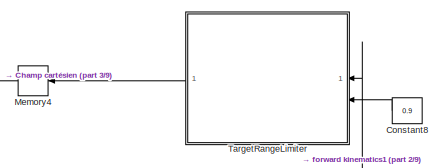
[diagram: root canvas - part 1/9, top center region]
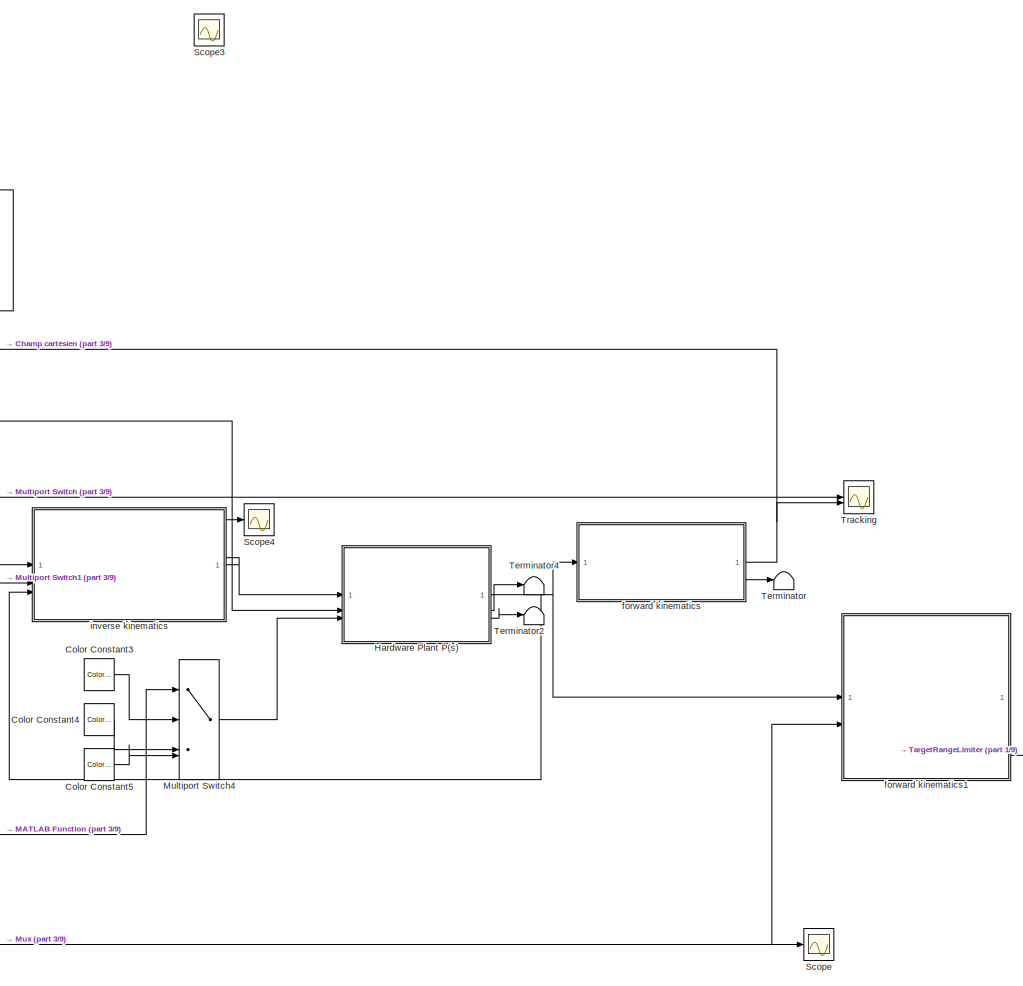
[diagram: root canvas - part 2/9, middle left region]
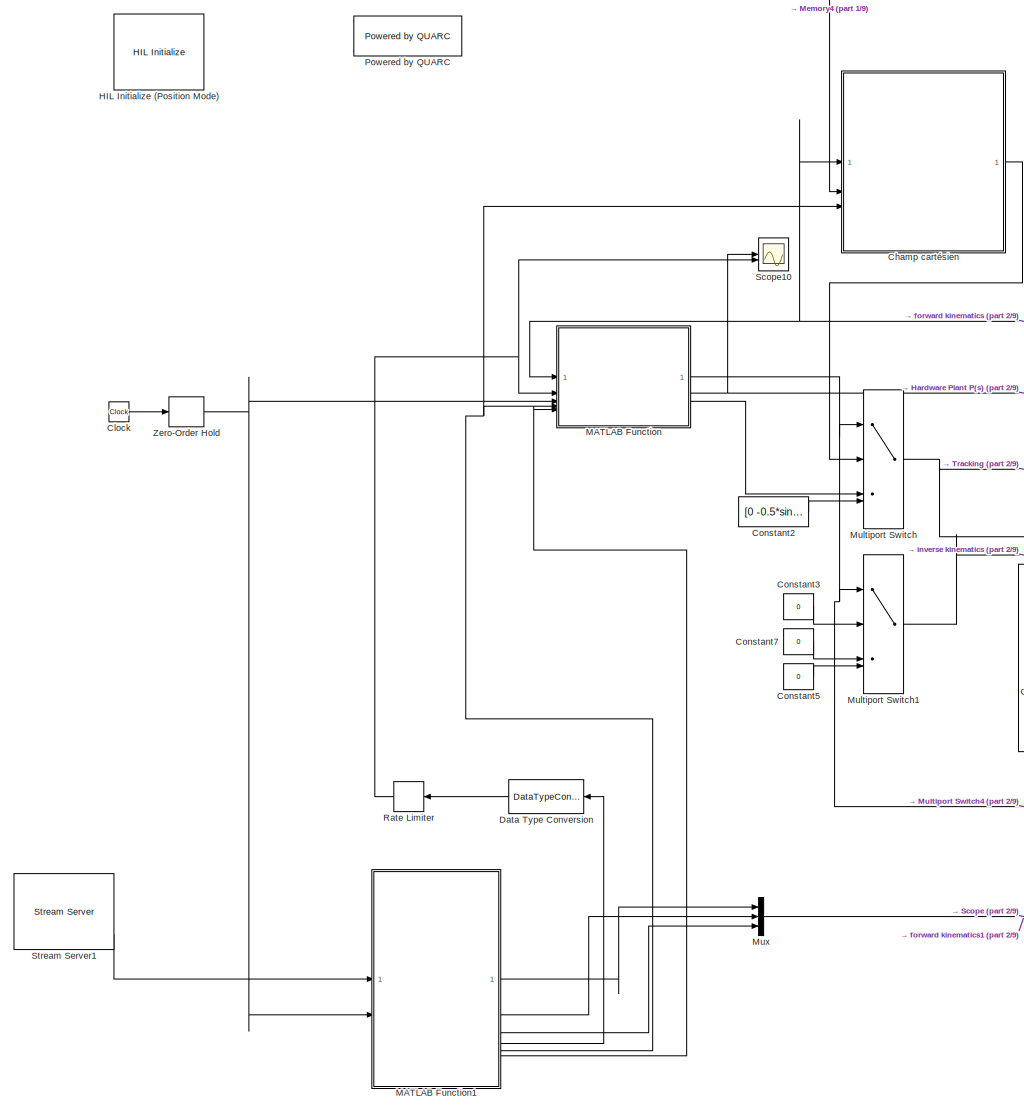
[diagram: root canvas - part 3/9, middle left region]
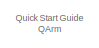
[diagram: root canvas - part 4/9, top left region]
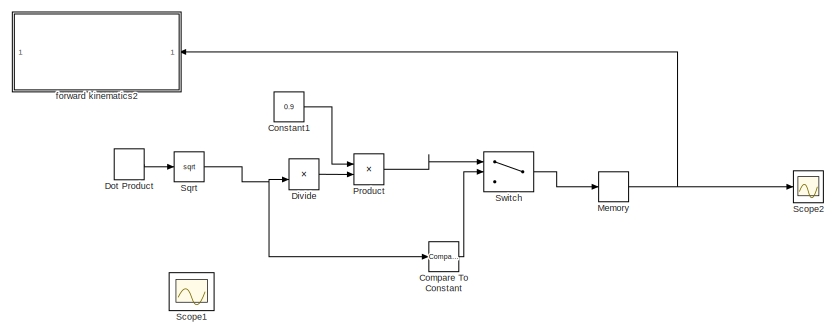
[diagram: root canvas - part 5/9, central region]
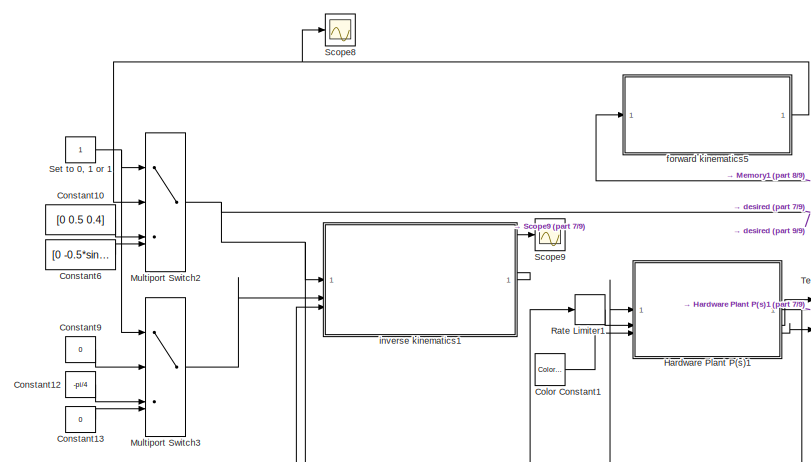
[diagram: root canvas - part 6/9, middle right region]
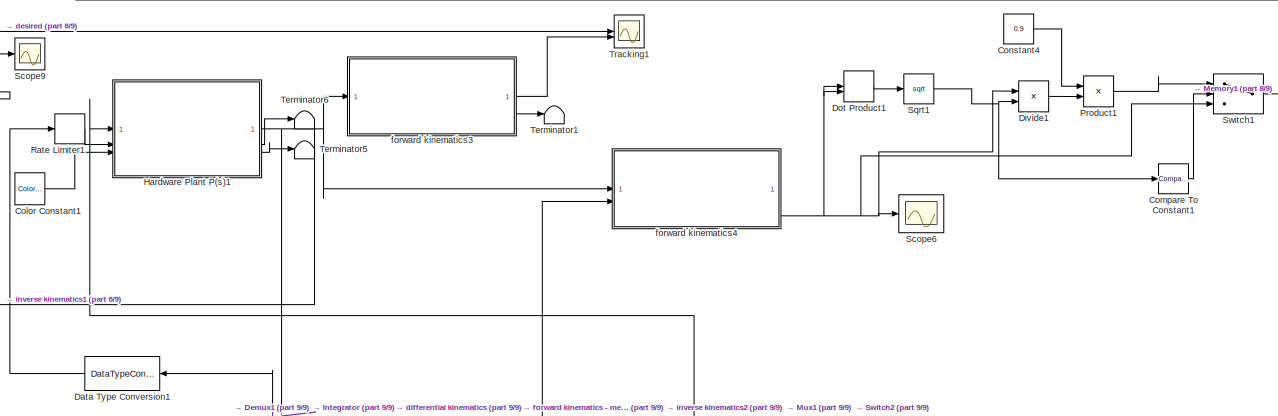
[diagram: root canvas - part 7/9, middle right region]
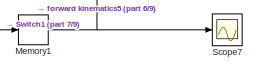
[diagram: root canvas - part 8/9, middle right region]
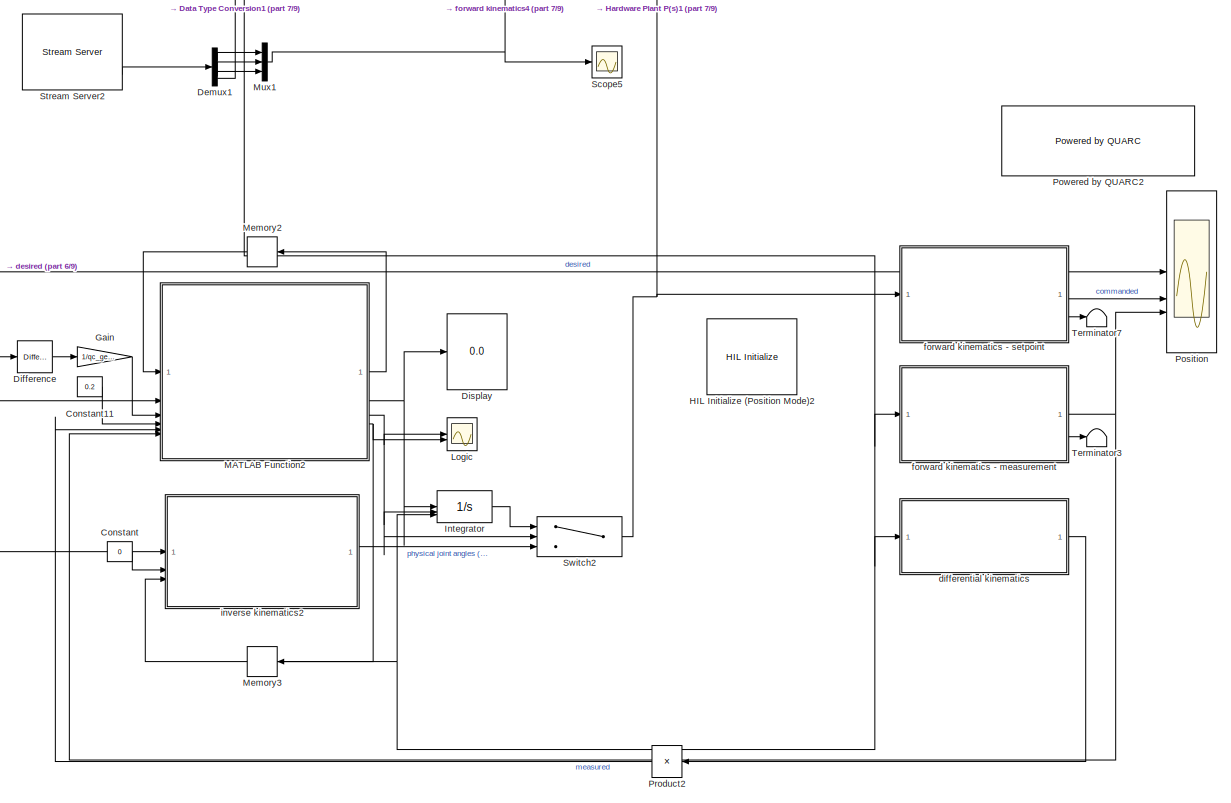
[diagram: root canvas - part 9/9, bottom right region]
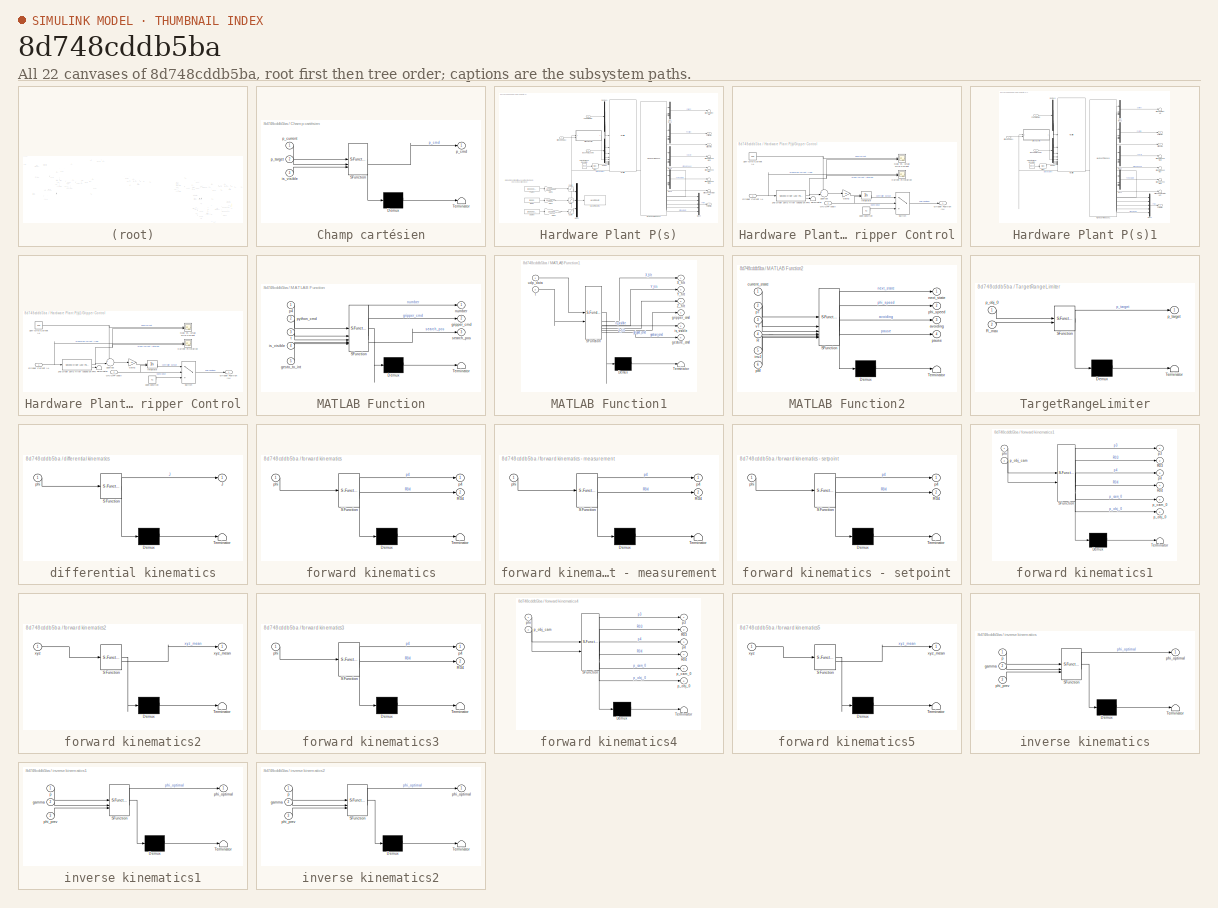
[diagram: thumbnail index - all 22 canvases of the model, root first then tree order]
MODEL slx_8d748cddb5ba
KIND model
CONFIG AbsTol = auto
CONFIG EnableMultiTasking = on
CONFIG FixedStep = 1/500
CONFIG InitFcn = home = [0.45; 0; 0.49];\npick = [0.3; 0; 0.3];\nplace = [-0.25; -0.25; 0.01];\nwaypoints = ...\n[pick, pick,place ,place ,home]' ;
CONFIG MaxStep = auto
CONFIG MinStep = auto
CONFIG RelTol = 1e-3
CONFIG SampleTimeConstraint = Unconstrained
CONFIG SolverName = ode4
CONFIG StartTime = 0.0
CONFIG StopTime = inf
BLOCK [SubSystem] Champ cartésien
  ErrorFcn = Stateflow.Translate.translate
  PermitHierarchicalResolution = ExplicitOnly
  SFBlockType = MATLAB Function
  TreatAsAtomicUnit = on
BLOCK [Demux] Champ cartésien/ Demux 
  Outputs = 1
BLOCK [S-Function] Champ cartésien/ SFunction 
  EnableBusSupport = off
  FunctionName = sf_sfun
  PortCounts = [3 2]
  SFcnIsStateOwnerBlock = off
  SFunctionDeploymentMode = off
  Tag = Stateflow S-Function 17
BLOCK [Terminator] Champ cartésien/ Terminator 
BLOCK [Inport] Champ cartésien/is_visible
  Port = 3
BLOCK [Outport] Champ cartésien/p_cmd
BLOCK [Inport] Champ cartésien/p_current
BLOCK [Inport] Champ cartésien/p_target
  Port = 2
BLOCK [Clock] Clock
BLOCK [Reference] Color Constant1  REF=quarc_library/Sources/Signals/Color Constant
  Commented = on
  SourceBlock = quarc_library/Sources/Signals/Color Constant
  SourceProductName = QUARC Targets
  SourceType = Color Constant
BLOCK [Reference] Color Constant3  REF=quarc_library/Sources/Signals/Color Constant
  SourceBlock = quarc_library/Sources/Signals/Color Constant
  SourceProductName = QUARC Targets
  SourceType = Color Constant
BLOCK [Reference] Color Constant4  REF=quarc_library/Sources/Signals/Color Constant
  SourceBlock = quarc_library/Sources/Signals/Color Constant
  SourceProductName = QUARC Targets
  SourceType = Color Constant
BLOCK [Reference] Color Constant5  REF=quarc_library/Sources/Signals/Color Constant
  SourceBlock = quarc_library/Sources/Signals/Color Constant
  SourceProductName = QUARC Targets
  SourceType = Color Constant
BLOCK [Reference] Compare To Constant  REF=simulink/Logic and Bit
Operations/Compare
To Constant
  SourceBlock = simulink/Logic and Bit\nOperations/Compare\nTo Constant
  SourceType = Compare To Constant
BLOCK [Reference] Compare To Constant1  REF=simulink/Logic and Bit
Operations/Compare
To Constant
  Commented = on
  SourceBlock = simulink/Logic and Bit\nOperations/Compare\nTo Constant
  SourceType = Compare To Constant
BLOCK [Constant] Constant
  Commented = on
  Value = 0
BLOCK [Constant] Constant1
  Value = 0.9
BLOCK [Constant] Constant10
  Commented = on
  Value = [0 0.5 0.4]
BLOCK [Constant] Constant11
  Commented = on
  Value = 0.2
BLOCK [Constant] Constant12
  Commented = on
  Value = -pi/4
BLOCK [Constant] Constant13
  Commented = on
  Value = 0
BLOCK [Constant] Constant2
  Value = [0 -0.5*sin(pi/2) 0]
BLOCK [Constant] Constant3
  Value = 0
BLOCK [Constant] Constant4
  Commented = on
  Value = 0.9
BLOCK [Constant] Constant5
  Value = 0
BLOCK [Constant] Constant6
  Commented = on
  Value = [0 -0.5*sin(pi/2) 0]
BLOCK [Constant] Constant7
  Value = 0
BLOCK [Constant] Constant8
  Value = 0.9
BLOCK [Constant] Constant9
  Commented = on
  Value = 0
BLOCK [DataTypeConversion] Data Type Conversion
  NameLocation = top
  OutDataTypeStr = double
  OutMax = 11
  OutMin = 0
  RndMeth = Floor
  SaturateOnIntegerOverflow = off
BLOCK [DataTypeConversion] Data Type Conversion1
  Commented = on
  NameLocation = top
  OutDataTypeStr = double
  OutMax = 1
  OutMin = [0]
  RndMeth = Floor
  SaturateOnIntegerOverflow = off
BLOCK [Demux] Demux1
  Commented = on
BLOCK [Reference] Difference  REF=simulink/Discrete/Difference
  Commented = on
  SourceBlock = simulink/Discrete/Difference
  SourceType = Difference
BLOCK [Display] Display
  Commented = on
  Decimation = 1
BLOCK [Product] Divide
  Inputs = */
BLOCK [Product] Divide1
  Commented = on
  Inputs = */
BLOCK [DotProduct] Dot Product
  OutDataTypeStr = Inherit: Inherit via internal rule
BLOCK [DotProduct] Dot Product1
  Commented = on
  OutDataTypeStr = Inherit: Inherit via internal rule
BLOCK [Gain] Gain
  Commented = on
  Gain = 1/qc_get_step_size
BLOCK [Reference] HIL Initialize (Position Mode)  REF=quarc_library/Data Acquisition/Generic/Configuration/HIL Initialize
  AttributesFormatString = %<object_name> (%<board_type>-%<board_number>)
  SourceBlock = quarc_library/Data Acquisition/Generic/Configuration/HIL Initialize
  SourceProductName = QUARC Targets
  SourceType = HIL Initialize
  UserDataPersistent = on
BLOCK [Reference] HIL Initialize (Position Mode)2  REF=quarc_library/Data Acquisition/Generic/Configuration/HIL Initialize
  AttributesFormatString = %<object_name> (%<board_type>-%<board_number>)
  Commented = on
  Priority = 1
  SourceBlock = quarc_library/Data Acquisition/Generic/Configuration/HIL Initialize
  SourceProductName = QUARC Targets
  SourceType = HIL Initialize
  UserDataPersistent = on
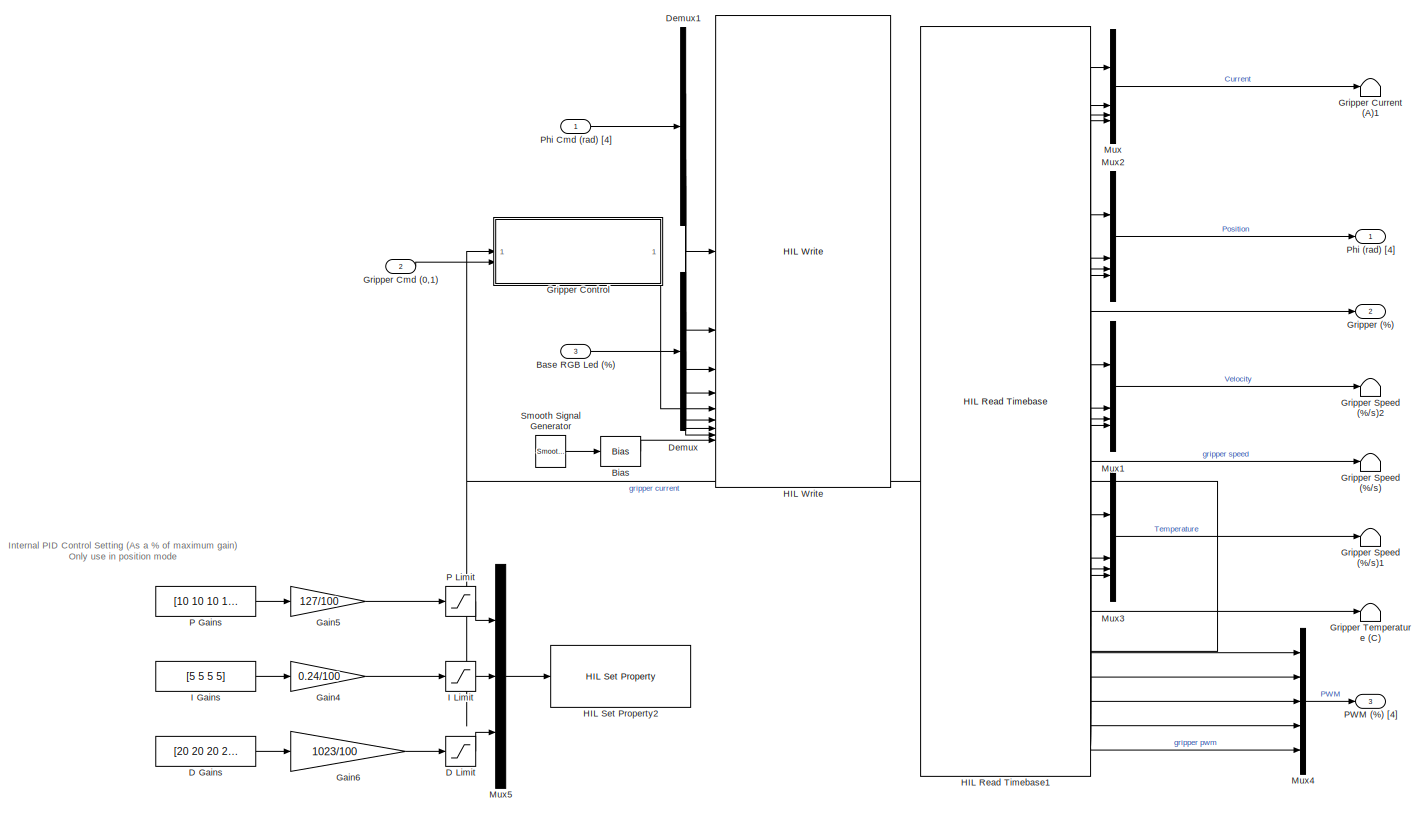
[diagram: Hardware Plant P(s) - part 1/1, most of the canvas]
BLOCK [SubSystem] Hardware Plant P(s)
BLOCK [Inport] Hardware Plant P(s)/Base RGB Led (%)
  Port = 3
BLOCK [Bias] Hardware Plant P(s)/Bias
  Bias = 0.5
  SaturateOnIntegerOverflow = off
BLOCK [Constant] Hardware Plant P(s)/D Gains
  Commented = on
  Value = [20 20 20 20]
BLOCK [Saturate] Hardware Plant P(s)/D Limit
  Commented = on
  LowerLimit = [0 0 0 0]
  UpperLimit = [1023 1023 1023 1023]
BLOCK [Demux] Hardware Plant P(s)/Demux
  Outputs = 3
BLOCK [Demux] Hardware Plant P(s)/Demux1
BLOCK [Gain] Hardware Plant P(s)/Gain4
  Commented = on
  Gain = 0.24/100
BLOCK [Gain] Hardware Plant P(s)/Gain5
  Commented = on
  Gain = 127/100
BLOCK [Gain] Hardware Plant P(s)/Gain6
  Commented = on
  Gain = 1023/100
BLOCK [Outport] Hardware Plant P(s)/Gripper (%)
  Port = 2
  VectorParamsAs1DForOutWhenUnconnected = off
BLOCK [Inport] Hardware Plant P(s)/Gripper Cmd (0,1)
  Port = 2
BLOCK [SubSystem] Hardware Plant P(s)/Gripper Control
BLOCK [Reference] Hardware Plant P(s)/Gripper Control/2nd Order 25Hz filter (based on FFT)  REF=quarc_library/Continuous/Second-Order
Low-Pass Filter
  SourceBlock = quarc_library/Continuous/Second-Order\nLow-Pass Filter
  SourceProductName = QUARC Targets
  SourceType = Second-Order Low-Pass Filter
BLOCK [Scope] Hardware Plant P(s)/Gripper Control/Current Filteration
  ActiveDisplayYMaximum = 0.62651
  ActiveDisplayYMinimum = -0.01447
  DataLoggingVariableName = ScopeData5
  Floating = off
  GraphicalSettings = {"GraphicalSettings":{"LegacySettings":true,"Style":{"AxesScalingProperties":{"ScaleAxesLimitsAtStop":false},"Style":{"AxesColor":"[0 0 0]","ChannelNames":[""],"ColorOrder":"[1 1 0.0666666666666667;0.0745098039215686 0.623529411764706 1;1 0.411764705882353 0.16078431372549;0.392156862745098 0.831372549019608 0.0745098039215686;0.717647058823529 0.274509803921569 1;0.0588235294117647 1 1;1 0.074509...<+424ch>  <repeated x4 — deduplicated; at blocks: Current Filteration, Goal vs. Actual Grip Current>
  MultipleDisplayCache = [{"MaxYLimMag":0.62651,"MaxYLimReal":0.62651,"MinYLimMag":0,"MinYLimReal":-0.01447,"PlotAsMagnitudePhase":false,"ShowGrid":true,"ShowLegend":true,"Title":"%<SignalLabel>","YLabel":""}]
  NameLocation = top
  NumInputPorts = 2
  ShowLegend = on
  WasSavedAsWebScope = on
  WindowPosition = [313 16 560 420]
BLOCK [Gain] Hardware Plant P(s)/Gripper Control/Gain2
  Gain = 10
BLOCK [Scope] Hardware Plant P(s)/Gripper Control/Goal vs. Actual Grip Current
  ActiveDisplayYMaximum = 0.27702
  ActiveDisplayYMinimum = 0.00229
  DataLoggingVariableName = ScopeData4
  Floating = off
  MultipleDisplayCache = [{"MaxYLimMag":0.27702,"MaxYLimReal":0.27702,"MinYLimMag":0.00229,"MinYLimReal":0.00229,"PlotAsMagnitudePhase":false,"ShowGrid":true,"ShowLegend":true,"Title":"%<SignalLabel>","YLabel":""}]
  NameLocation = top
  NumInputPorts = 2
  ShowLegend = on
  WasSavedAsWebScope = on
  WindowPosition = [2 557 958 439]
BLOCK [Inport] Hardware Plant P(s)/Gripper Control/Gripper Current (A)
BLOCK [Outport] Hardware Plant P(s)/Gripper Control/Gripper Position (%)
  VectorParamsAs1DForOutWhenUnconnected = off
BLOCK [Integrator] Hardware Plant P(s)/Gripper Control/Integrator
  ExternalReset = either
  InitialCondition = 0.1
  LimitOutput = on
  LowerSaturationLimit = 0.1
  UpperSaturationLimit = 0.9
BLOCK [Inport] Hardware Plant P(s)/Gripper Control/ON//OFF (bool)
  Port = 2
BLOCK [Constant] Hardware Plant P(s)/Gripper Control/Soft-Grip Current (A)
  Value = 0.25
BLOCK [Sum] Hardware Plant P(s)/Gripper Control/Subtract
  Inputs = +-|
BLOCK [Switch] Hardware Plant P(s)/Gripper Control/Switch
  Criteria = u2 > Threshold
  InputSameDT = off
  SaturateOnIntegerOverflow = off
BLOCK [Terminator] Hardware Plant P(s)/Gripper Control/Terminator
BLOCK [Constant] Hardware Plant P(s)/Gripper Control/open position
  Value = 0.1
BLOCK [Terminator] Hardware Plant P(s)/Gripper Current (A)1
BLOCK [Terminator] Hardware Plant P(s)/Gripper Speed (%//s)
BLOCK [Terminator] Hardware Plant P(s)/Gripper Speed (%//s)1
BLOCK [Terminator] Hardware Plant P(s)/Gripper Speed (%//s)2
BLOCK [Terminator] Hardware Plant P(s)/Gripper Temperature (C)
BLOCK [Reference] Hardware Plant P(s)/HIL Read Timebase1  REF=quarc_library/Data Acquisition/Generic/Timebases/HIL Read
Timebase
  AttributesFormatString = (%<object_name>)
  SourceBlock = quarc_library/Data Acquisition/Generic/Timebases/HIL Read\nTimebase
  SourceProductName = QUARC Targets
  SourceType = HIL Read Timebase
  UserDataPersistent = on
BLOCK [Reference] Hardware Plant P(s)/HIL Set Property2  REF=quarc_library/Data Acquisition/Generic/Configuration/HIL Set Property
  AttributesFormatString = (%<object_name>)
  Commented = on
  SourceBlock = quarc_library/Data Acquisition/Generic/Configuration/HIL Set Property
  SourceProductName = QUARC Targets
  SourceType = HIL Set Property
  UserDataPersistent = on
BLOCK [Reference] Hardware Plant P(s)/HIL Write  REF=quarc_library/Data Acquisition/Generic/Immediate I//O/HIL Write
  AttributesFormatString = (%<object_name>)
  SourceBlock = quarc_library/Data Acquisition/Generic/Immediate I//O/HIL Write
  SourceProductName = QUARC Targets
  SourceType = HIL Write
  UserDataPersistent = on
BLOCK [Constant] Hardware Plant P(s)/I Gains
  Commented = on
  Value = [5 5 5 5]
BLOCK [Saturate] Hardware Plant P(s)/I Limit
  Commented = on
  LowerLimit = [0 0 0 0]
  UpperLimit = [0.24 0.24 0.24 0.24]
BLOCK [Mux] Hardware Plant P(s)/Mux
  DisplayOption = bar
BLOCK [Mux] Hardware Plant P(s)/Mux1
  DisplayOption = bar
BLOCK [Mux] Hardware Plant P(s)/Mux2
  DisplayOption = bar
BLOCK [Mux] Hardware Plant P(s)/Mux3
  DisplayOption = bar
BLOCK [Mux] Hardware Plant P(s)/Mux4
  DisplayOption = bar
  Inputs = 5
BLOCK [Mux] Hardware Plant P(s)/Mux5
  Commented = on
  DisplayOption = bar
  Inputs = 3
BLOCK [Constant] Hardware Plant P(s)/P Gains
  Commented = on
  Value = [10 10 10 10]
BLOCK [Saturate] Hardware Plant P(s)/P Limit
  Commented = on
  LowerLimit = [0 0 0 0]
  UpperLimit = [127 127 127 127]
BLOCK [Outport] Hardware Plant P(s)/PWM (%) [4]
  Port = 3
  VectorParamsAs1DForOutWhenUnconnected = off
BLOCK [Outport] Hardware Plant P(s)/Phi (rad) [4]
  VectorParamsAs1DForOutWhenUnconnected = off
BLOCK [Inport] Hardware Plant P(s)/Phi Cmd (rad) [4]
BLOCK [Reference] Hardware Plant P(s)/Smooth Signal Generator  REF=quarc_library/Sources/Signals/Smooth Signal
Generator
  SourceBlock = quarc_library/Sources/Signals/Smooth Signal\nGenerator
  SourceProductName = QUARC Targets
  SourceType = Smooth Signal Generator
BLOCK [SubSystem] Hardware Plant P(s)1
  Commented = on
BLOCK [Inport] Hardware Plant P(s)1/Base RGB Led (%)
  Port = 3
BLOCK [Bias] Hardware Plant P(s)1/Bias
  Bias = 0.5
  SaturateOnIntegerOverflow = off
BLOCK [Demux] Hardware Plant P(s)1/Demux
  Outputs = 3
BLOCK [Demux] Hardware Plant P(s)1/Demux1
BLOCK [Outport] Hardware Plant P(s)1/Gripper (%)
  Port = 2
  VectorParamsAs1DForOutWhenUnconnected = off
BLOCK [Inport] Hardware Plant P(s)1/Gripper Cmd (0,1)
  Port = 2
BLOCK [SubSystem] Hardware Plant P(s)1/Gripper Control
BLOCK [Reference] Hardware Plant P(s)1/Gripper Control/2nd Order 25Hz filter (based on FFT)  REF=quarc_library/Continuous/Second-Order
Low-Pass Filter
  SourceBlock = quarc_library/Continuous/Second-Order\nLow-Pass Filter
  SourceProductName = QUARC Targets
  SourceType = Second-Order Low-Pass Filter
BLOCK [Scope] Hardware Plant P(s)1/Gripper Control/Current Filteration
  ActiveDisplayYMaximum = 0.62651
  ActiveDisplayYMinimum = -0.01447
  DataLoggingVariableName = ScopeData5
  Floating = off
  MultipleDisplayCache = [{"MaxYLimMag":0.62651,"MaxYLimReal":0.62651,"MinYLimMag":0,"MinYLimReal":-0.01447,"PlotAsMagnitudePhase":false,"ShowGrid":true,"ShowLegend":true,"Title":"%<SignalLabel>","YLabel":""}]
  NameLocation = top
  NumInputPorts = 2
  ShowLegend = on
  WasSavedAsWebScope = on
  WindowPosition = [313 16 560 420]
BLOCK [Gain] Hardware Plant P(s)1/Gripper Control/Gain2
  Gain = 10
BLOCK [Scope] Hardware Plant P(s)1/Gripper Control/Goal vs. Actual Grip Current
  ActiveDisplayYMaximum = 0.27702
  ActiveDisplayYMinimum = 0.00229
  DataLoggingVariableName = ScopeData4
  Floating = off
  MultipleDisplayCache = [{"MaxYLimMag":0.27702,"MaxYLimReal":0.27702,"MinYLimMag":0.00229,"MinYLimReal":0.00229,"PlotAsMagnitudePhase":false,"ShowGrid":true,"ShowLegend":true,"Title":"%<SignalLabel>","YLabel":""}]
  NameLocation = top
  NumInputPorts = 2
  ShowLegend = on
  WasSavedAsWebScope = on
  WindowPosition = [2 557 958 439]
BLOCK [Inport] Hardware Plant P(s)1/Gripper Control/Gripper Current (A)
BLOCK [Outport] Hardware Plant P(s)1/Gripper Control/Gripper Position (%)
  VectorParamsAs1DForOutWhenUnconnected = off
BLOCK [Integrator] Hardware Plant P(s)1/Gripper Control/Integrator
  ExternalReset = either
  InitialCondition = 0.1
  LimitOutput = on
  LowerSaturationLimit = 0.1
  UpperSaturationLimit = 0.9
BLOCK [Inport] Hardware Plant P(s)1/Gripper Control/ON//OFF (bool)
  Port = 2
BLOCK [Constant] Hardware Plant P(s)1/Gripper Control/Soft-Grip Current (A)
  Value = 0.25
BLOCK [Sum] Hardware Plant P(s)1/Gripper Control/Subtract
  Inputs = +-|
BLOCK [Switch] Hardware Plant P(s)1/Gripper Control/Switch
  Criteria = u2 > Threshold
  InputSameDT = off
  SaturateOnIntegerOverflow = off
BLOCK [Terminator] Hardware Plant P(s)1/Gripper Control/Terminator
BLOCK [Constant] Hardware Plant P(s)1/Gripper Control/open position
  Value = 0.1
BLOCK [Terminator] Hardware Plant P(s)1/Gripper Current (A)1
BLOCK [Terminator] Hardware Plant P(s)1/Gripper Speed (%//s)
BLOCK [Terminator] Hardware Plant P(s)1/Gripper Speed (%//s)1
BLOCK [Terminator] Hardware Plant P(s)1/Gripper Speed (%//s)2
BLOCK [Terminator] Hardware Plant P(s)1/Gripper Temperature (C)
BLOCK [Reference] Hardware Plant P(s)1/HIL Read Timebase1  REF=quarc_library/Data Acquisition/Generic/Timebases/HIL Read
Timebase
  AttributesFormatString = (%<object_name>)
  SourceBlock = quarc_library/Data Acquisition/Generic/Timebases/HIL Read\nTimebase
  SourceProductName = QUARC Targets
  SourceType = HIL Read Timebase
  UserDataPersistent = on
BLOCK [Reference] Hardware Plant P(s)1/HIL Write  REF=quarc_library/Data Acquisition/Generic/Immediate I//O/HIL Write
  AttributesFormatString = (%<object_name>)
  SourceBlock = quarc_library/Data Acquisition/Generic/Immediate I//O/HIL Write
  SourceProductName = QUARC Targets
  SourceType = HIL Write
  UserDataPersistent = on
BLOCK [Mux] Hardware Plant P(s)1/Mux
  DisplayOption = bar
BLOCK [Mux] Hardware Plant P(s)1/Mux1
  DisplayOption = bar
BLOCK [Mux] Hardware Plant P(s)1/Mux2
  DisplayOption = bar
BLOCK [Mux] Hardware Plant P(s)1/Mux3
  DisplayOption = bar
BLOCK [Mux] Hardware Plant P(s)1/Mux4
  DisplayOption = bar
  Inputs = 5
BLOCK [Outport] Hardware Plant P(s)1/PWM (%) [4]
  Port = 3
  VectorParamsAs1DForOutWhenUnconnected = off
BLOCK [Outport] Hardware Plant P(s)1/Phi (rad) [4]
  VectorParamsAs1DForOutWhenUnconnected = off
BLOCK [Inport] Hardware Plant P(s)1/Phi Cmd (rad) [4]
BLOCK [Reference] Hardware Plant P(s)1/Smooth Signal Generator  REF=quarc_library/Sources/Signals/Smooth Signal
Generator
  SourceBlock = quarc_library/Sources/Signals/Smooth Signal\nGenerator
  SourceProductName = QUARC Targets
  SourceType = Smooth Signal Generator
BLOCK [Integrator] Integrator
  Commented = on
  ExternalReset = rising
  InitialConditionSource = external
  LimitOutput = on
  LowerSaturationLimit = [-170 -85 -95 -180]*pi/180
  UpperSaturationLimit = [170 85 85 180]*pi/180
BLOCK [Scope] Logic
  ActiveDisplayYMaximum = 1.125
  ActiveDisplayYMinimum = -0.125
  Commented = on
  DataLoggingVariableName = ScopeData8
  Floating = off
  GraphicalSettings = {"GraphicalSettings":{"LegacySettings":true,"Style":{"Style":{"AxesColor":"[0 0 0]","ChannelNames":[""],"ColorOrder":"[1 1 0.0666666666666667;0.0745098039215686 0.623529411764706 1;1 0.411764705882353 0.16078431372549;0.392156862745098 0.831372549019608 0.0745098039215686;0.717647058823529 0.274509803921569 1;0.0588235294117647 1 1;1 0.0745098039215686 0.650980392156863]","CurrentConfiguration":"e...<+343ch>
  MultipleDisplayCache = [{"MaxYLimMag":1.125,"MaxYLimReal":1.125,"MinYLimMag":0,"MinYLimReal":-0.125,"PlotAsMagnitudePhase":false,"ShowGrid":true,"ShowLegend":true,"Title":"%<SignalLabel>","YLabel":""}]
  NumInputPorts = 2
  ScopeFrameLocation = window
  ShowLegend = on
  WasSavedAsWebScope = on
  WindowPosition = [145.000000,344.000000,560.000000,420.000000,]
BLOCK [SubSystem] MATLAB Function
  ErrorFcn = Stateflow.Translate.translate
  PermitHierarchicalResolution = ExplicitOnly
  SFBlockType = MATLAB Function
  TreatAsAtomicUnit = on
BLOCK [Demux] MATLAB Function/ Demux 
  Outputs = 1
BLOCK [S-Function] MATLAB Function/ SFunction 
  EnableBusSupport = off
  FunctionName = sf_sfun
  PortCounts = [5 4]
  SFcnIsStateOwnerBlock = off
  SFunctionDeploymentMode = off
  Tag = Stateflow S-Function 14
BLOCK [Terminator] MATLAB Function/ Terminator 
BLOCK [Inport] MATLAB Function/gesto_to_int
  Port = 5
BLOCK [Outport] MATLAB Function/gripper_cmd
  Port = 2
BLOCK [Inport] MATLAB Function/is_visible
  Port = 4
BLOCK [Outport] MATLAB Function/number
BLOCK [Inport] MATLAB Function/p4
BLOCK [Inport] MATLAB Function/python_cmd
  Port = 2
BLOCK [Outport] MATLAB Function/search_pos
  Port = 3
BLOCK [Inport] MATLAB Function/t
  Port = 3
BLOCK [SubSystem] MATLAB Function1
  ErrorFcn = Stateflow.Translate.translate
  PermitHierarchicalResolution = ExplicitOnly
  SFBlockType = MATLAB Function
  TreatAsAtomicUnit = on
BLOCK [Demux] MATLAB Function1/ Demux 
  Outputs = 1
BLOCK [S-Function] MATLAB Function1/ SFunction 
  EnableBusSupport = off
  FunctionName = sf_sfun
  PortCounts = [2 7]
  SFcnIsStateOwnerBlock = off
  SFunctionDeploymentMode = off
  Tag = Stateflow S-Function 16
BLOCK [Terminator] MATLAB Function1/ Terminator 
BLOCK [Outport] MATLAB Function1/X_filt
BLOCK [Outport] MATLAB Function1/Y_filt
  Port = 2
BLOCK [Outport] MATLAB Function1/Z_filt
  Port = 3
BLOCK [Outport] MATLAB Function1/gesture_cmd
  Port = 6
BLOCK [Outport] MATLAB Function1/gripper_cmd
  Port = 4
BLOCK [Outport] MATLAB Function1/is_visible
  Port = 5
BLOCK [Inport] MATLAB Function1/t
  Port = 2
BLOCK [Inport] MATLAB Function1/udp_data
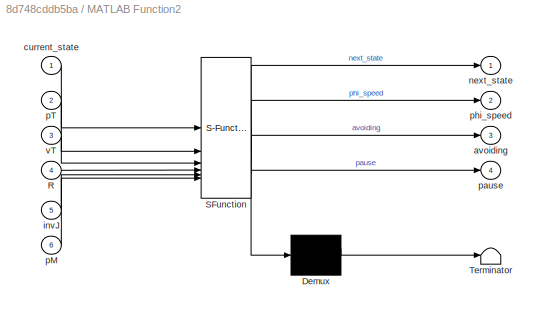
BLOCK [SubSystem] MATLAB Function2
  Commented = on
  ErrorFcn = Stateflow.Translate.translate
  PermitHierarchicalResolution = ExplicitOnly
  SFBlockType = MATLAB Function
  TreatAsAtomicUnit = on
BLOCK [Demux] MATLAB Function2/ Demux 
  Outputs = 1
BLOCK [S-Function] MATLAB Function2/ SFunction 
  EnableBusSupport = off
  FunctionName = sf_sfun
  PortCounts = [6 5]
  SFcnIsStateOwnerBlock = off
  SFunctionDeploymentMode = off
  Tag = Stateflow S-Function 9
BLOCK [Terminator] MATLAB Function2/ Terminator 
BLOCK [Inport] MATLAB Function2/R
  Port = 4
BLOCK [Outport] MATLAB Function2/avoiding
  Port = 3
  VectorParamsAs1DForOutWhenUnconnected = off
BLOCK [Inport] MATLAB Function2/current_state
BLOCK [Inport] MATLAB Function2/invJ
  Port = 5
BLOCK [Outport] MATLAB Function2/next_state
  VectorParamsAs1DForOutWhenUnconnected = off
BLOCK [Inport] MATLAB Function2/pM
  Port = 6
BLOCK [Inport] MATLAB Function2/pT
  Port = 2
BLOCK [Outport] MATLAB Function2/pause
  Port = 4
  VectorParamsAs1DForOutWhenUnconnected = off
BLOCK [Outport] MATLAB Function2/phi_speed
  Port = 2
  VectorParamsAs1DForOutWhenUnconnected = off
BLOCK [Inport] MATLAB Function2/vT
  Port = 3
BLOCK [Memory] Memory
  InitialCondition = [0 ,0.5 ,0.5]
BLOCK [Memory] Memory1
  Commented = on
  InitialCondition = [0 ,0.5 ,0.5]
BLOCK [Memory] Memory2
  Commented = on
  InitialCondition = 1
  NameLocation = top
BLOCK [Memory] Memory3
  Commented = on
  InitialCondition = 1
  NameLocation = top
BLOCK [Memory] Memory4
  InitialCondition = [0 ;0.5 ;0.5]
BLOCK [MultiPortSwitch] Multiport Switch
  InputSameDT = off
  SaturateOnIntegerOverflow = off
BLOCK [MultiPortSwitch] Multiport Switch1
  InputSameDT = off
  SaturateOnIntegerOverflow = off
BLOCK [MultiPortSwitch] Multiport Switch2
  Commented = on
  InputSameDT = off
  SaturateOnIntegerOverflow = off
BLOCK [MultiPortSwitch] Multiport Switch3
  Commented = on
  InputSameDT = off
  SaturateOnIntegerOverflow = off
BLOCK [MultiPortSwitch] Multiport Switch4
  InputSameDT = off
  Inputs = 4
  SaturateOnIntegerOverflow = off
BLOCK [Mux] Mux
  DisplayOption = bar
  Inputs = 3
BLOCK [Mux] Mux1
  Commented = on
  DisplayOption = bar
  Inputs = 3
BLOCK [Scope] Position
  ActiveDisplayYMaximum = 0.73336
  ActiveDisplayYMinimum = -0.58261
  Commented = on
  DataLoggingVariableName = ScopeData9
  Floating = off
  GraphicalSettings = {"GraphicalSettings":{"LegacySettings":true,"Style":{"AxesScalingProperties":{"ScaleAxesLimitsAtStop":false},"Style":{"AxesColor":"[0 0 0]","ChannelNames":[""],"ColorOrder":"[1 1 0.0666666666666667;0.0745098039215686 0.623529411764706 1;1 0.411764705882353 0.16078431372549;0.392156862745098 0.831372549019608 0.0745098039215686;0.717647058823529 0.274509803921569 1;0.0588235294117647 1 1;1 0.074509...<+611ch>
  MultipleDisplayCache = [{"MaxYLimMag":0.73336,"MaxYLimReal":0.73336,"MinYLimMag":0,"MinYLimReal":-0.58261,"PlotAsMagnitudePhase":false,"ShowGrid":true,"ShowLegend":true,"Title":"%<SignalLabel>","YLabel":""}]
  NumInputPorts = 3
  ScopeFrameLocation = window
  ShowLegend = on
  TimeSpan = 90
  WasSavedAsWebScope = on
  WindowPosition = [773.000000,347.000000,565.000000,424.000000,]
BLOCK [Reference] Powered by QUARC  REF=quarc_library/Logos/Powered by QUARC
  SourceBlock = quarc_library/Logos/Powered by QUARC
  SourceProductName = QUARC Targets
  SourceType = Powered by QUARC
BLOCK [Reference] Powered by QUARC2  REF=quarc_library/Logos/Powered by QUARC
  Commented = on
  SourceBlock = quarc_library/Logos/Powered by QUARC
  SourceProductName = QUARC Targets
  SourceType = Powered by QUARC
BLOCK [Product] Product
BLOCK [Product] Product1
  Commented = on
BLOCK [Product] Product2
  Commented = on
  Inputs = /
  Multiplication = Matrix(*)
  NameLocation = top
BLOCK [RateLimiter] Rate Limiter
  NameLocation = top
  SampleTimeMode = inherited
BLOCK [RateLimiter] Rate Limiter1
  Commented = on
  SampleTimeMode = inherited
BLOCK [Scope] Scope
  ActiveDisplayYMaximum = 0.31034032395109534
  ActiveDisplayYMinimum = -0.053062727209180587
  DataLoggingVariableName = ScopeData2
  Floating = off
  GraphicalSettings = {"Style":{"BackgroundColor":[0.12941176470588237,0.12941176470588237,0.12941176470588237],"AxesColor":[0.07058823529411765,0.07058823529411765,0.07058823529411765],"LabelsColor":[0.8509803921568627,0.8509803921568627,0.8509803921568627],"PreserveColors":false,"Visible":[true,true,true],"LineStyle":["-","-","-"],"LineWidth":[1.5,1.5,1.5],"BarWidth":[0.9,0.9,0.9],"LineColor":["auto","auto","auto"],"...<+2287ch>
  MultipleDisplayCache = [{"MaxYLimMag":0.31034032395109534,"MaxYLimReal":0.31034032395109534,"MinYLimMag":0,"MinYLimReal":-0.053062727209180587,"PlotAsMagnitudePhase":false,"ShowGrid":true,"ShowLegend":false,"Title":"%<SignalLabel>","YLabel":""}]
  NumInputPorts = 1
  ScopeFrameLocation = window
  WasSavedAsWebScope = on
  WindowPosition = [37.000000,301.000000,560.000000,420.000000,]
BLOCK [Scope] Scope1
  ActiveDisplayYMaximum = 2.6391843046872321
  ActiveDisplayYMinimum = -0.12497992207214531
  ContainerLayout = {"WindowBounds":[-1688,55,1696,1018]}
  Floating = off
  GraphicalSettings = {"Style":{"BackgroundColor":[0.12941176470588237,0.12941176470588237,0.12941176470588237],"AxesColor":[0.07058823529411765,0.07058823529411765,0.07058823529411765],"LabelsColor":[0.8509803921568627,0.8509803921568627,0.8509803921568627],"PreserveColors":false,"Visible":[true],"LineStyle":["-"],"LineWidth":[1.5],"BarWidth":[0.9],"LineColor":["auto"],"LineFaceAlpha":[1],"LineEdgeAlpha":[1],"Marker":...<+2001ch>
  MultipleDisplayCache = [{"MaxYLimMag":13.837499976158142,"MaxYLimReal":2.6391843046872321,"MinYLimMag":0,"MinYLimReal":-0.12497992207214531,"PlotAsMagnitudePhase":false,"ShowGrid":true,"ShowLegend":true,"Title":"%<SignalLabel>","YLabel":""}]
  NumInputPorts = 1
  ScopeFrameLocation = container
  ShowLegend = on
  Visible = on
  WasSavedAsWebScope = on
  WindowPosition = [-1688.000000,-23.000000,1684.000000,1018.000000,]
BLOCK [Scope] Scope10
  ActiveDisplayYMaximum = 26.936623102549653
  ActiveDisplayYMinimum = -19.781857003526063
  DataLoggingVariableName = ScopeData16
  Floating = off
  GraphicalSettings = {"AxesScalingProperties":{"AlignXAxis":"Center","AlignYAxis":"Center","AutoScaleXAxisLimits":false,"AxesScaling":"Manual","AxesScalingNumUpdates":10,"ExpandOnly":true,"ScaleAxesLimitsAtStop":false,"XAxisDataRange":100,"YAxisDataRange":80},"DisplayProperties":{"ColorOrder":["auto","auto","auto","auto","auto","auto","auto","auto","auto","auto","auto","auto","auto","auto","auto","auto","auto","auto",...<+2077ch>
  MultipleDisplayCache = [{"MaxYLimMag":10,"MaxYLimReal":26.936623102549653,"MinYLimMag":0,"MinYLimReal":-19.781857003526063,"PlotAsMagnitudePhase":false,"ShowGrid":true,"ShowLegend":false,"Title":"%<SignalLabel>","YLabel":""}]
  NumInputPorts = 2
  ScopeFrameLocation = window
  WasSavedAsWebScope = on
  WindowPosition = [175.000000,324.000000,560.000000,420.000000,]
BLOCK [Scope] Scope2
  ActiveDisplayYMaximum = 0.15932707853928335
  ActiveDisplayYMinimum = -0.15530750088098816
  DataLoggingVariableName = ScopeData3
  Floating = off
  GraphicalSettings = {"Style":{"BackgroundColor":[0.12941176470588237,0.12941176470588237,0.12941176470588237],"AxesColor":[0.07058823529411765,0.07058823529411765,0.07058823529411765],"LabelsColor":[0.8509803921568627,0.8509803921568627,0.8509803921568627],"PreserveColors":false,"Visible":[true,true,true],"LineStyle":["-","-","-"],"LineWidth":[1.5,1.5,1.5],"BarWidth":[0.9,0.9,0.9],"LineColor":["auto","auto","auto"],"...<+2238ch>
  MultipleDisplayCache = [{"MaxYLimMag":0.89767590593546631,"MaxYLimReal":0.15932707853928335,"MinYLimMag":0,"MinYLimReal":-0.15530750088098816,"PlotAsMagnitudePhase":false,"ShowGrid":true,"ShowLegend":false,"Title":"%<SignalLabel>","YLabel":""}]
  NumInputPorts = 1
  ScopeFrameLocation = window
  WasSavedAsWebScope = on
  WindowPosition = [0.000000,66.000000,1920.000000,1009.000000,]
BLOCK [Scope] Scope3
  ActiveDisplayYMaximum = 0.52763613707129164
  ActiveDisplayYMinimum = -0.2741132612100553
  DataLoggingVariableName = ScopeData6
  Floating = off
  GraphicalSettings = {"Style":{"BackgroundColor":[0.12941176470588237,0.12941176470588237,0.12941176470588237],"AxesColor":[0.07058823529411765,0.07058823529411765,0.07058823529411765],"LabelsColor":[0.8509803921568627,0.8509803921568627,0.8509803921568627],"PreserveColors":false,"Visible":[true,true,true],"LineStyle":["-","-","-"],"LineWidth":[1.5,1.5,1.5],"BarWidth":[0.9,0.9,0.9],"LineColor":["auto","auto","auto"],"...<+2359ch>
  MultipleDisplayCache = [{"MaxYLimMag":0.89767590593546631,"MaxYLimReal":0.52763613707129164,"MinYLimMag":0,"MinYLimReal":-0.2741132612100553,"PlotAsMagnitudePhase":false,"ShowGrid":true,"ShowLegend":false,"Title":"%<SignalLabel>","YLabel":""}]
  NumInputPorts = 1
  ScopeFrameLocation = window
  WasSavedAsWebScope = on
  WindowPosition = [0.000000,66.000000,1920.000000,1009.000000,]
BLOCK [Scope] Scope4
  ActiveDisplayYMaximum = 2.6969512581912602
  ActiveDisplayYMinimum = -1.68864453030744
  DataLoggingVariableName = ScopeData7
  Floating = off
  GraphicalSettings = {"AxesScalingProperties":{"AlignXAxis":"Center","AlignYAxis":"Center","AutoScaleXAxisLimits":false,"AxesScaling":"Manual","AxesScalingNumUpdates":10,"ExpandOnly":true,"ScaleAxesLimitsAtStop":false,"XAxisDataRange":100,"YAxisDataRange":80},"DisplayProperties":{"ColorOrder":["auto","auto","auto","auto","auto","auto","auto","auto","auto","auto","auto","auto","auto","auto","auto","auto","auto","auto",...<+2461ch>
  MultipleDisplayCache = [{"MaxYLimMag":0.89767590593546631,"MaxYLimReal":2.6969512581912602,"MinYLimMag":0,"MinYLimReal":-1.68864453030744,"PlotAsMagnitudePhase":false,"ShowGrid":true,"ShowLegend":false,"Title":"%<SignalLabel>","YLabel":""}]
  NumInputPorts = 1
  ScopeFrameLocation = window
  WasSavedAsWebScope = on
  WindowPosition = [-73.000000,-13.000000,1920.000000,1009.000000,]
BLOCK [Scope] Scope5
  ActiveDisplayYMaximum = 0.31034032395109534
  ActiveDisplayYMinimum = -0.053062727209180587
  Commented = on
  DataLoggingVariableName = ScopeData10
  Floating = off
  GraphicalSettings = {"Style":{"BackgroundColor":[0.12941176470588237,0.12941176470588237,0.12941176470588237],"AxesColor":[0.07058823529411765,0.07058823529411765,0.07058823529411765],"LabelsColor":[0.8509803921568627,0.8509803921568627,0.8509803921568627],"PreserveColors":false,"Visible":[true,true,true],"LineStyle":["-","-","-"],"LineWidth":[1.5,1.5,1.5],"BarWidth":[0.9,0.9,0.9],"LineColor":["auto","auto","auto"],"...<+2287ch>
  MultipleDisplayCache = [{"MaxYLimMag":0.31034032395109534,"MaxYLimReal":0.31034032395109534,"MinYLimMag":0,"MinYLimReal":-0.053062727209180587,"PlotAsMagnitudePhase":false,"ShowGrid":true,"ShowLegend":false,"Title":"%<SignalLabel>","YLabel":""}]
  NumInputPorts = 1
  ScopeFrameLocation = window
  WasSavedAsWebScope = on
  WindowPosition = [37.000000,301.000000,560.000000,420.000000,]
BLOCK [Scope] Scope6
  ActiveDisplayYMaximum = 2.6391843046872321
  ActiveDisplayYMinimum = -0.12497992207214531
  Commented = on
  ContainerLayout = {"WindowBounds":[-1688,55,1696,1018]}
  DataLoggingVariableName = ScopeData11
  Floating = off
  GraphicalSettings = {"Style":{"BackgroundColor":[0.12941176470588237,0.12941176470588237,0.12941176470588237],"AxesColor":[0.07058823529411765,0.07058823529411765,0.07058823529411765],"LabelsColor":[0.8509803921568627,0.8509803921568627,0.8509803921568627],"PreserveColors":false,"Visible":[true,true,true],"LineStyle":["-","-","-"],"LineWidth":[1.5,1.5,1.5],"BarWidth":[0.9,0.9,0.9],"LineColor":["auto","auto","auto"],"...<+2358ch>
  MultipleDisplayCache = [{"MaxYLimMag":13.837499976158142,"MaxYLimReal":2.6391843046872321,"MinYLimMag":0,"MinYLimReal":-0.12497992207214531,"PlotAsMagnitudePhase":false,"ShowGrid":true,"ShowLegend":true,"Title":"%<SignalLabel>","YLabel":""}]
  NumInputPorts = 1
  ScopeFrameLocation = container
  ShowLegend = on
  WasSavedAsWebScope = on
  WindowPosition = [-1688.000000,7.000000,1696.000000,1018.000000,]
BLOCK [Scope] Scope7
  ActiveDisplayYMaximum = 0.15932707853928335
  ActiveDisplayYMinimum = -0.15530750088098816
  Commented = on
  DataLoggingVariableName = ScopeData12
  Floating = off
  GraphicalSettings = {"Style":{"BackgroundColor":[0.12941176470588237,0.12941176470588237,0.12941176470588237],"AxesColor":[0.07058823529411765,0.07058823529411765,0.07058823529411765],"LabelsColor":[0.8509803921568627,0.8509803921568627,0.8509803921568627],"PreserveColors":false,"Visible":[true,true,true],"LineStyle":["-","-","-"],"LineWidth":[1.5,1.5,1.5],"BarWidth":[0.9,0.9,0.9],"LineColor":["auto","auto","auto"],"...<+2238ch>
  MultipleDisplayCache = [{"MaxYLimMag":0.89767590593546631,"MaxYLimReal":0.15932707853928335,"MinYLimMag":0,"MinYLimReal":-0.15530750088098816,"PlotAsMagnitudePhase":false,"ShowGrid":true,"ShowLegend":false,"Title":"%<SignalLabel>","YLabel":""}]
  NumInputPorts = 1
  ScopeFrameLocation = window
  WasSavedAsWebScope = on
  WindowPosition = [0.000000,66.000000,1920.000000,1009.000000,]
BLOCK [Scope] Scope8
  ActiveDisplayYMaximum = 0.52763613707129164
  ActiveDisplayYMinimum = -0.2741132612100553
  Commented = on
  DataLoggingVariableName = ScopeData13
  Floating = off
  GraphicalSettings = {"Style":{"BackgroundColor":[0.12941176470588237,0.12941176470588237,0.12941176470588237],"AxesColor":[0.07058823529411765,0.07058823529411765,0.07058823529411765],"LabelsColor":[0.8509803921568627,0.8509803921568627,0.8509803921568627],"PreserveColors":false,"Visible":[true,true,true],"LineStyle":["-","-","-"],"LineWidth":[1.5,1.5,1.5],"BarWidth":[0.9,0.9,0.9],"LineColor":["auto","auto","auto"],"...<+2359ch>
  MultipleDisplayCache = [{"MaxYLimMag":0.89767590593546631,"MaxYLimReal":0.52763613707129164,"MinYLimMag":0,"MinYLimReal":-0.2741132612100553,"PlotAsMagnitudePhase":false,"ShowGrid":true,"ShowLegend":false,"Title":"%<SignalLabel>","YLabel":""}]
  NumInputPorts = 1
  ScopeFrameLocation = window
  WasSavedAsWebScope = on
  WindowPosition = [0.000000,66.000000,1920.000000,1009.000000,]
BLOCK [Scope] Scope9
  ActiveDisplayYMaximum = 2.6969512581912602
  ActiveDisplayYMinimum = -1.68864453030744
  Commented = on
  DataLoggingVariableName = ScopeData14
  Floating = off
  GraphicalSettings = {"AxesScalingProperties":{"AlignXAxis":"Center","AlignYAxis":"Center","AutoScaleXAxisLimits":false,"AxesScaling":"Manual","AxesScalingNumUpdates":10,"ExpandOnly":true,"ScaleAxesLimitsAtStop":false,"XAxisDataRange":100,"YAxisDataRange":80},"DisplayProperties":{"ColorOrder":["auto","auto","auto","auto","auto","auto","auto","auto","auto","auto","auto","auto","auto","auto","auto","auto","auto","auto",...<+2461ch>
  MultipleDisplayCache = [{"MaxYLimMag":0.89767590593546631,"MaxYLimReal":2.6969512581912602,"MinYLimMag":0,"MinYLimReal":-1.68864453030744,"PlotAsMagnitudePhase":false,"ShowGrid":true,"ShowLegend":false,"Title":"%<SignalLabel>","YLabel":""}]
  NumInputPorts = 1
  ScopeFrameLocation = window
  WasSavedAsWebScope = on
  WindowPosition = [-73.000000,-13.000000,1920.000000,1009.000000,]
BLOCK [Constant] Set to 0, 1 or 1
  Commented = on
  NameLocation = top
BLOCK [Sqrt] Sqrt
BLOCK [Sqrt] Sqrt1
  Commented = on
BLOCK [Reference] Stream Server1  REF=quarc_library/Communications/Basic/Stream Server
  AttributesFormatString = "udp://localhost:5005"
  SourceBlock = quarc_library/Communications/Basic/Stream Server
  SourceProductName = QUARC Targets
  SourceType = Stream Server
BLOCK [Reference] Stream Server2  REF=quarc_library/Communications/Basic/Stream Server
  AttributesFormatString = "udp://localhost:5005"
  Commented = on
  SourceBlock = quarc_library/Communications/Basic/Stream Server
  SourceProductName = QUARC Targets
  SourceType = Stream Server
BLOCK [Switch] Switch
  Criteria = u2 > Threshold
  InputSameDT = off
  SaturateOnIntegerOverflow = off
BLOCK [Switch] Switch1
  Commented = on
  Criteria = u2 > Threshold
  InputSameDT = off
  SaturateOnIntegerOverflow = off
BLOCK [Switch] Switch2
  Commented = on
  Criteria = u2 > Threshold
  InputSameDT = off
  SaturateOnIntegerOverflow = off
BLOCK [SubSystem] TargetRangeLimiter
  ErrorFcn = Stateflow.Translate.translate
  PermitHierarchicalResolution = ExplicitOnly
  SFBlockType = MATLAB Function
  TreatAsAtomicUnit = on
BLOCK [Demux] TargetRangeLimiter/ Demux 
  Outputs = 1
BLOCK [S-Function] TargetRangeLimiter/ SFunction 
  EnableBusSupport = off
  FunctionName = sf_sfun
  PortCounts = [2 2]
  SFcnIsStateOwnerBlock = off
  SFunctionDeploymentMode = off
  Tag = Stateflow S-Function 15
BLOCK [Terminator] TargetRangeLimiter/ Terminator 
BLOCK [Inport] TargetRangeLimiter/R_max
  Port = 2
BLOCK [Inport] TargetRangeLimiter/p_obj_0
BLOCK [Outport] TargetRangeLimiter/p_target
BLOCK [Terminator] Terminator
BLOCK [Terminator] Terminator1
  Commented = on
BLOCK [Terminator] Terminator2
BLOCK [Terminator] Terminator3
  Commented = on
BLOCK [Terminator] Terminator4
BLOCK [Terminator] Terminator5
  Commented = on
BLOCK [Terminator] Terminator6
  Commented = on
BLOCK [Terminator] Terminator7
  Commented = on
BLOCK [Scope] Tracking
  ActiveDisplayYMaximum = 0.54944
  ActiveDisplayYMinimum = 0.07139
  DataLoggingVariableName = ScopeData1
  Floating = off
  GraphicalSettings = {"GraphicalSettings":{"LegacySettings":true,"Style":{"AxesScalingProperties":{"ScaleAxesLimitsAtStop":false},"Style":{"AxesColor":"[0.0705882352941176 0.0705882352941176 0.0705882352941176]","BackgroundColor":"[0.129411764705882 0.129411764705882 0.129411764705882]","ChannelNames":[""],"ColorOrder":"[0 0.447058823529412 0.741176470588235;0.850980392156863 0.325490196078431 0.0980392156862745;0.929...<+1086ch>
  MultipleDisplayCache = [{"MaxYLimMag":0.54944,"MaxYLimReal":0.54944,"MinYLimMag":0.07139,"MinYLimReal":0.07139,"PlotAsMagnitudePhase":false,"ShowGrid":true,"ShowLegend":false,"Title":"%<SignalLabel>","YLabel":""}]
  NumInputPorts = 2
  WasSavedAsWebScope = on
  WindowPosition = [1 49 1920 1075]
BLOCK [Scope] Tracking1
  ActiveDisplayYMaximum = 0.54944
  ActiveDisplayYMinimum = 0.07139
  Commented = on
  DataLoggingVariableName = ScopeData15
  Floating = off
  GraphicalSettings = {"GraphicalSettings":{"LegacySettings":true,"Style":{"AxesScalingProperties":{"ScaleAxesLimitsAtStop":false},"Style":{"AxesColor":"[0.0705882352941176 0.0705882352941176 0.0705882352941176]","BackgroundColor":"[0.129411764705882 0.129411764705882 0.129411764705882]","ChannelNames":[""],"ColorOrder":"[0 0.447058823529412 0.741176470588235;0.850980392156863 0.325490196078431 0.0980392156862745;0.929...<+1086ch>
  MultipleDisplayCache = [{"MaxYLimMag":0.54944,"MaxYLimReal":0.54944,"MinYLimMag":0.07139,"MinYLimReal":0.07139,"PlotAsMagnitudePhase":false,"ShowGrid":true,"ShowLegend":false,"Title":"%<SignalLabel>","YLabel":""}]
  NumInputPorts = 2
  WasSavedAsWebScope = on
  WindowPosition = [1 49 1920 1075]
BLOCK [ZeroOrderHold] Zero-Order Hold
  SampleTime = -1
BLOCK [SubSystem] differential kinematics
  Commented = on
  ErrorFcn = Stateflow.Translate.translate
  NameLocation = top
  PermitHierarchicalResolution = ExplicitOnly
  SFBlockType = MATLAB Function
  TreatAsAtomicUnit = on
BLOCK [Demux] differential kinematics/ Demux 
  Outputs = 1
BLOCK [S-Function] differential kinematics/ SFunction 
  EnableBusSupport = off
  FunctionName = sf_sfun
  PortCounts = [1 2]
  SFcnIsStateOwnerBlock = off
  SFunctionDeploymentMode = off
  Tag = Stateflow S-Function 5
BLOCK [Terminator] differential kinematics/ Terminator 
BLOCK [Outport] differential kinematics/J
  VectorParamsAs1DForOutWhenUnconnected = off
BLOCK [Inport] differential kinematics/phi
BLOCK [SubSystem] forward kinematics
  ErrorFcn = Stateflow.Translate.translate
  PermitHierarchicalResolution = ExplicitOnly
  SFBlockType = MATLAB Function
  TreatAsAtomicUnit = on
BLOCK [SubSystem] forward kinematics - measurement
  Commented = on
  ErrorFcn = Stateflow.Translate.translate
  PermitHierarchicalResolution = ExplicitOnly
  SFBlockType = MATLAB Function
  TreatAsAtomicUnit = on
BLOCK [Demux] forward kinematics - measurement/ Demux 
  Outputs = 1
BLOCK [S-Function] forward kinematics - measurement/ SFunction 
  EnableBusSupport = off
  FunctionName = sf_sfun
  PortCounts = [1 3]
  SFcnIsStateOwnerBlock = off
  SFunctionDeploymentMode = off
  Tag = Stateflow S-Function 6
BLOCK [Terminator] forward kinematics - measurement/ Terminator 
BLOCK [Outport] forward kinematics - measurement/R04
  Port = 2
  VectorParamsAs1DForOutWhenUnconnected = off
BLOCK [Outport] forward kinematics - measurement/p4
  VectorParamsAs1DForOutWhenUnconnected = off
BLOCK [Inport] forward kinematics - measurement/phi
BLOCK [SubSystem] forward kinematics - setpoint
  Commented = on
  ErrorFcn = Stateflow.Translate.translate
  PermitHierarchicalResolution = ExplicitOnly
  SFBlockType = MATLAB Function
  TreatAsAtomicUnit = on
BLOCK [Demux] forward kinematics - setpoint/ Demux 
  Outputs = 1
BLOCK [S-Function] forward kinematics - setpoint/ SFunction 
  EnableBusSupport = off
  FunctionName = sf_sfun
  PortCounts = [1 3]
  SFcnIsStateOwnerBlock = off
  SFunctionDeploymentMode = off
  Tag = Stateflow S-Function 8
BLOCK [Terminator] forward kinematics - setpoint/ Terminator 
BLOCK [Outport] forward kinematics - setpoint/R04
  Port = 2
  VectorParamsAs1DForOutWhenUnconnected = off
BLOCK [Outport] forward kinematics - setpoint/p4
  VectorParamsAs1DForOutWhenUnconnected = off
BLOCK [Inport] forward kinematics - setpoint/phi
BLOCK [Demux] forward kinematics/ Demux 
  Outputs = 1
BLOCK [S-Function] forward kinematics/ SFunction 
  EnableBusSupport = off
  FunctionName = sf_sfun
  PortCounts = [1 3]
  SFcnIsStateOwnerBlock = off
  SFunctionDeploymentMode = off
  Tag = Stateflow S-Function 3
BLOCK [Terminator] forward kinematics/ Terminator 
BLOCK [Outport] forward kinematics/R04
  Port = 2
  VectorParamsAs1DForOutWhenUnconnected = off
BLOCK [Outport] forward kinematics/p4
  VectorParamsAs1DForOutWhenUnconnected = off
BLOCK [Inport] forward kinematics/phi
BLOCK [SubSystem] forward kinematics1
  ErrorFcn = Stateflow.Translate.translate
  NameLocation = top
  PermitHierarchicalResolution = ExplicitOnly
  SFBlockType = MATLAB Function
  TreatAsAtomicUnit = on
BLOCK [Demux] forward kinematics1/ Demux 
  Outputs = 1
BLOCK [S-Function] forward kinematics1/ SFunction 
  EnableBusSupport = off
  FunctionName = sf_sfun
  PortCounts = [2 7]
  SFcnIsStateOwnerBlock = off
  SFunctionDeploymentMode = off
  Tag = Stateflow S-Function 1
BLOCK [Terminator] forward kinematics1/ Terminator 
BLOCK [Outport] forward kinematics1/R03
  Port = 2
BLOCK [Outport] forward kinematics1/R04
  Port = 4
  VectorParamsAs1DForOutWhenUnconnected = off
BLOCK [Outport] forward kinematics1/p3
BLOCK [Outport] forward kinematics1/p4
  Port = 3
  VectorParamsAs1DForOutWhenUnconnected = off
BLOCK [Outport] forward kinematics1/p_cam_0
  Port = 5
BLOCK [Outport] forward kinematics1/p_obj_0
  Port = 6
BLOCK [Inport] forward kinematics1/p_obj_cam
  Port = 2
BLOCK [Inport] forward kinematics1/phi
BLOCK [SubSystem] forward kinematics2
  ErrorFcn = Stateflow.Translate.translate
  NameLocation = top
  PermitHierarchicalResolution = ExplicitOnly
  SFBlockType = MATLAB Function
  TreatAsAtomicUnit = on
BLOCK [Demux] forward kinematics2/ Demux 
  Outputs = 1
BLOCK [S-Function] forward kinematics2/ SFunction 
  EnableBusSupport = off
  FunctionName = sf_sfun
  PortCounts = [1 2]
  SFcnIsStateOwnerBlock = off
  SFunctionDeploymentMode = off
  Tag = Stateflow S-Function 2
BLOCK [Terminator] forward kinematics2/ Terminator 
BLOCK [Inport] forward kinematics2/xyz
BLOCK [Outport] forward kinematics2/xyz_mean
BLOCK [SubSystem] forward kinematics3
  Commented = on
  ErrorFcn = Stateflow.Translate.translate
  PermitHierarchicalResolution = ExplicitOnly
  SFBlockType = MATLAB Function
  TreatAsAtomicUnit = on
BLOCK [Demux] forward kinematics3/ Demux 
  Outputs = 1
BLOCK [S-Function] forward kinematics3/ SFunction 
  EnableBusSupport = off
  FunctionName = sf_sfun
  PortCounts = [1 3]
  SFcnIsStateOwnerBlock = off
  SFunctionDeploymentMode = off
  Tag = Stateflow S-Function 7
BLOCK [Terminator] forward kinematics3/ Terminator 
BLOCK [Outport] forward kinematics3/R04
  Port = 2
  VectorParamsAs1DForOutWhenUnconnected = off
BLOCK [Outport] forward kinematics3/p4
  VectorParamsAs1DForOutWhenUnconnected = off
BLOCK [Inport] forward kinematics3/phi
BLOCK [SubSystem] forward kinematics4
  Commented = on
  ErrorFcn = Stateflow.Translate.translate
  NameLocation = top
  PermitHierarchicalResolution = ExplicitOnly
  SFBlockType = MATLAB Function
  TreatAsAtomicUnit = on
BLOCK [Demux] forward kinematics4/ Demux 
  Outputs = 1
BLOCK [S-Function] forward kinematics4/ SFunction 
  EnableBusSupport = off
  FunctionName = sf_sfun
  PortCounts = [2 7]
  SFcnIsStateOwnerBlock = off
  SFunctionDeploymentMode = off
  Tag = Stateflow S-Function 10
BLOCK [Terminator] forward kinematics4/ Terminator 
BLOCK [Outport] forward kinematics4/R03
  Port = 2
BLOCK [Outport] forward kinematics4/R04
  Port = 4
  VectorParamsAs1DForOutWhenUnconnected = off
BLOCK [Outport] forward kinematics4/p3
BLOCK [Outport] forward kinematics4/p4
  Port = 3
  VectorParamsAs1DForOutWhenUnconnected = off
BLOCK [Outport] forward kinematics4/p_cam_0
  Port = 5
BLOCK [Outport] forward kinematics4/p_obj_0
  Port = 6
BLOCK [Inport] forward kinematics4/p_obj_cam
  Port = 2
BLOCK [Inport] forward kinematics4/phi
BLOCK [SubSystem] forward kinematics5
  Commented = on
  ErrorFcn = Stateflow.Translate.translate
  PermitHierarchicalResolution = ExplicitOnly
  SFBlockType = MATLAB Function
  TreatAsAtomicUnit = on
BLOCK [Demux] forward kinematics5/ Demux 
  Outputs = 1
BLOCK [S-Function] forward kinematics5/ SFunction 
  EnableBusSupport = off
  FunctionName = sf_sfun
  PortCounts = [1 2]
  SFcnIsStateOwnerBlock = off
  SFunctionDeploymentMode = off
  Tag = Stateflow S-Function 11
BLOCK [Terminator] forward kinematics5/ Terminator 
BLOCK [Inport] forward kinematics5/xyz
BLOCK [Outport] forward kinematics5/xyz_mean
BLOCK [SubSystem] inverse kinematics
  ErrorFcn = Stateflow.Translate.translate
  NameLocation = top
  PermitHierarchicalResolution = ExplicitOnly
  SFBlockType = MATLAB Function
  TreatAsAtomicUnit = on
BLOCK [Demux] inverse kinematics/ Demux 
  Outputs = 1
BLOCK [S-Function] inverse kinematics/ SFunction 
  EnableBusSupport = off
  FunctionName = sf_sfun
  PortCounts = [3 2]
  SFcnIsStateOwnerBlock = off
  SFunctionDeploymentMode = off
  Tag = Stateflow S-Function 4
BLOCK [Terminator] inverse kinematics/ Terminator 
BLOCK [Inport] inverse kinematics/gamma
  Port = 2
BLOCK [Inport] inverse kinematics/p
BLOCK [Outport] inverse kinematics/phi_optimal
  VectorParamsAs1DForOutWhenUnconnected = off
BLOCK [Inport] inverse kinematics/phi_prev
  Port = 3
BLOCK [SubSystem] inverse kinematics1
  Commented = on
  ErrorFcn = Stateflow.Translate.translate
  NameLocation = top
  PermitHierarchicalResolution = ExplicitOnly
  SFBlockType = MATLAB Function
  TreatAsAtomicUnit = on
BLOCK [Demux] inverse kinematics1/ Demux 
  Outputs = 1
BLOCK [S-Function] inverse kinematics1/ SFunction 
  EnableBusSupport = off
  FunctionName = sf_sfun
  PortCounts = [3 2]
  SFcnIsStateOwnerBlock = off
  SFunctionDeploymentMode = off
  Tag = Stateflow S-Function 12
BLOCK [Terminator] inverse kinematics1/ Terminator 
BLOCK [Inport] inverse kinematics1/gamma
  Port = 2
BLOCK [Inport] inverse kinematics1/p
BLOCK [Outport] inverse kinematics1/phi_optimal
  VectorParamsAs1DForOutWhenUnconnected = off
BLOCK [Inport] inverse kinematics1/phi_prev
  Port = 3
BLOCK [SubSystem] inverse kinematics2
  Commented = on
  ErrorFcn = Stateflow.Translate.translate
  PermitHierarchicalResolution = ExplicitOnly
  SFBlockType = MATLAB Function
  TreatAsAtomicUnit = on
BLOCK [Demux] inverse kinematics2/ Demux 
  Outputs = 1
BLOCK [S-Function] inverse kinematics2/ SFunction 
  EnableBusSupport = off
  FunctionName = sf_sfun
  PortCounts = [3 2]
  SFcnIsStateOwnerBlock = off
  SFunctionDeploymentMode = off
  Tag = Stateflow S-Function 13
BLOCK [Terminator] inverse kinematics2/ Terminator 
BLOCK [Inport] inverse kinematics2/gamma
  Port = 2
BLOCK [Inport] inverse kinematics2/p
BLOCK [Outport] inverse kinematics2/phi_optimal
  VectorParamsAs1DForOutWhenUnconnected = off
BLOCK [Inport] inverse kinematics2/phi_prev
  Port = 3
ANNOTATION (root): Quick Start Guide QArm
ANNOTATION Hardware Plant P(s): Internal PID Control Setting (As a % of maximum gain) Only use in position mode
LINE Champ cartésien:1 -> Multiport Switch:2
LINE Clock:1 -> Zero-Order Hold:1
LINE Color Constant1:1 -> Hardware Plant P(s)1:3
LINE Color Constant3:1 -> Multiport Switch4:2
LINE Color Constant4:1 -> Multiport Switch4:3
LINE Color Constant5:1 -> Multiport Switch4:4
LINE Compare To Constant1:1 -> Switch1:2
LINE Compare To Constant:1 -> Switch:2
LINE Constant10:1 -> Multiport Switch2:3
LINE Constant11:1 -> MATLAB Function2:4
LINE Constant12:1 -> Multiport Switch3:3
LINE Constant13:1 -> Multiport Switch3:4
LINE Constant1:1 -> Product:1
LINE Constant2:1 -> Multiport Switch:4
LINE Constant3:1 -> Multiport Switch1:2
LINE Constant4:1 -> Product1:1
LINE Constant5:1 -> Multiport Switch1:4
LINE Constant6:1 -> Multiport Switch2:4
LINE Constant7:1 -> Multiport Switch1:3
LINE Constant8:1 -> TargetRangeLimiter:2
LINE Constant9:1 -> Multiport Switch3:2
LINE Constant:1 -> inverse kinematics2:2
LINE Data Type Conversion1:1 -> Rate Limiter1:1
LINE Data Type Conversion:1 -> Rate Limiter:1
LINE Demux1:1 -> Mux1:1
LINE Demux1:2 -> Mux1:2
LINE Demux1:3 -> Mux1:3
LINE Demux1:4 -> Data Type Conversion1:1
LINE Difference:1 -> Gain:1
LINE Divide1:1 -> Product1:2
LINE Divide:1 -> Product:2
LINE Dot Product1:1 -> Sqrt1:1
LINE Dot Product:1 -> Sqrt:1
LINE Gain:1 -> MATLAB Function2:3
LINE Hardware Plant P(s)/Base RGB Led (%):1 -> Hardware Plant P(s)/Demux:1
LINE Hardware Plant P(s)/Bias:1 -> Hardware Plant P(s)/HIL Write:9
LINE Hardware Plant P(s)/D Gains:1 -> Hardware Plant P(s)/Gain6:1
LINE Hardware Plant P(s)/D Limit:1 -> Hardware Plant P(s)/Mux5:3
LINE Hardware Plant P(s)/Demux1:1 -> Hardware Plant P(s)/HIL Write:1
LINE Hardware Plant P(s)/Demux1:2 -> Hardware Plant P(s)/HIL Write:2
LINE Hardware Plant P(s)/Demux1:3 -> Hardware Plant P(s)/HIL Write:3
LINE Hardware Plant P(s)/Demux1:4 -> Hardware Plant P(s)/HIL Write:4
LINE Hardware Plant P(s)/Demux:1 -> Hardware Plant P(s)/HIL Write:6
LINE Hardware Plant P(s)/Demux:2 -> Hardware Plant P(s)/HIL Write:7
LINE Hardware Plant P(s)/Demux:3 -> Hardware Plant P(s)/HIL Write:8
LINE Hardware Plant P(s)/Gain4:1 -> Hardware Plant P(s)/I Limit:1
LINE Hardware Plant P(s)/Gain5:1 -> Hardware Plant P(s)/P Limit:1
LINE Hardware Plant P(s)/Gain6:1 -> Hardware Plant P(s)/D Limit:1
LINE Hardware Plant P(s)/Gripper Cmd (0,1):1 -> Hardware Plant P(s)/Gripper Control:2
NET Hardware Plant P(s)/Gripper Control/2nd Order 25Hz filter (based on FFT):1 -> Hardware Plant P(s)/Gripper Control/Current Filteration:2, Hardware Plant P(s)/Gripper Control/Goal vs. Actual Grip Current:2, Hardware Plant P(s)/Gripper Control/Subtract:2
LINE Hardware Plant P(s)/Gripper Control/2nd Order 25Hz filter (based on FFT):2 -> Hardware Plant P(s)/Gripper Control/Terminator:1
LINE Hardware Plant P(s)/Gripper Control/Gain2:1 -> Hardware Plant P(s)/Gripper Control/Integrator:1
NET Hardware Plant P(s)/Gripper Control/Gripper Current (A):1 -> Hardware Plant P(s)/Gripper Control/2nd Order 25Hz filter (based on FFT):1, Hardware Plant P(s)/Gripper Control/Current Filteration:1
LINE Hardware Plant P(s)/Gripper Control/Integrator:1 -> Hardware Plant P(s)/Gripper Control/Switch:1
NET Hardware Plant P(s)/Gripper Control/ON//OFF (bool):1 -> Hardware Plant P(s)/Gripper Control/Integrator:2, Hardware Plant P(s)/Gripper Control/Switch:2
NET Hardware Plant P(s)/Gripper Control/Soft-Grip Current (A):1 -> Hardware Plant P(s)/Gripper Control/Goal vs. Actual Grip Current:1, Hardware Plant P(s)/Gripper Control/Subtract:1
LINE Hardware Plant P(s)/Gripper Control/Subtract:1 -> Hardware Plant P(s)/Gripper Control/Gain2:1
LINE Hardware Plant P(s)/Gripper Control/Switch:1 -> Hardware Plant P(s)/Gripper Control/Gripper Position (%):1
LINE Hardware Plant P(s)/Gripper Control/open position:1 -> Hardware Plant P(s)/Gripper Control/Switch:3
LINE Hardware Plant P(s)/Gripper Control:1 -> Hardware Plant P(s)/HIL Write:5
LINE Hardware Plant P(s)/HIL Read Timebase1:1 -> Hardware Plant P(s)/Mux:1
LINE Hardware Plant P(s)/HIL Read Timebase1:10 -> Hardware Plant P(s)/Gripper (%):1
LINE Hardware Plant P(s)/HIL Read Timebase1:11 -> Hardware Plant P(s)/Mux1:1
LINE Hardware Plant P(s)/HIL Read Timebase1:12 -> Hardware Plant P(s)/Mux1:2
LINE Hardware Plant P(s)/HIL Read Timebase1:13 -> Hardware Plant P(s)/Mux1:3
LINE Hardware Plant P(s)/HIL Read Timebase1:14 -> Hardware Plant P(s)/Mux1:4
LINE Hardware Plant P(s)/HIL Read Timebase1:15 -> Hardware Plant P(s)/Gripper Speed (%//s):1
LINE Hardware Plant P(s)/HIL Read Timebase1:16 -> Hardware Plant P(s)/Mux3:1
LINE Hardware Plant P(s)/HIL Read Timebase1:17 -> Hardware Plant P(s)/Mux3:2
LINE Hardware Plant P(s)/HIL Read Timebase1:18 -> Hardware Plant P(s)/Mux3:3
LINE Hardware Plant P(s)/HIL Read Timebase1:19 -> Hardware Plant P(s)/Mux3:4
LINE Hardware Plant P(s)/HIL Read Timebase1:2 -> Hardware Plant P(s)/Mux:2
LINE Hardware Plant P(s)/HIL Read Timebase1:20 -> Hardware Plant P(s)/Gripper Temperature (C):1
LINE Hardware Plant P(s)/HIL Read Timebase1:21 -> Hardware Plant P(s)/Mux4:1
LINE Hardware Plant P(s)/HIL Read Timebase1:22 -> Hardware Plant P(s)/Mux4:2
LINE Hardware Plant P(s)/HIL Read Timebase1:23 -> Hardware Plant P(s)/Mux4:3
LINE Hardware Plant P(s)/HIL Read Timebase1:24 -> Hardware Plant P(s)/Mux4:4
LINE Hardware Plant P(s)/HIL Read Timebase1:25 -> Hardware Plant P(s)/Mux4:5
LINE Hardware Plant P(s)/HIL Read Timebase1:3 -> Hardware Plant P(s)/Mux:3
LINE Hardware Plant P(s)/HIL Read Timebase1:4 -> Hardware Plant P(s)/Mux:4
LINE Hardware Plant P(s)/HIL Read Timebase1:5 -> Hardware Plant P(s)/Gripper Control:1
LINE Hardware Plant P(s)/HIL Read Timebase1:6 -> Hardware Plant P(s)/Mux2:1
LINE Hardware Plant P(s)/HIL Read Timebase1:7 -> Hardware Plant P(s)/Mux2:2
LINE Hardware Plant P(s)/HIL Read Timebase1:8 -> Hardware Plant P(s)/Mux2:3
LINE Hardware Plant P(s)/HIL Read Timebase1:9 -> Hardware Plant P(s)/Mux2:4
LINE Hardware Plant P(s)/I Gains:1 -> Hardware Plant P(s)/Gain4:1
LINE Hardware Plant P(s)/I Limit:1 -> Hardware Plant P(s)/Mux5:2
LINE Hardware Plant P(s)/Mux1:1 -> Hardware Plant P(s)/Gripper Speed (%//s)2:1
LINE Hardware Plant P(s)/Mux2:1 -> Hardware Plant P(s)/Phi (rad) [4]:1
LINE Hardware Plant P(s)/Mux3:1 -> Hardware Plant P(s)/Gripper Speed (%//s)1:1
LINE Hardware Plant P(s)/Mux4:1 -> Hardware Plant P(s)/PWM (%) [4]:1
LINE Hardware Plant P(s)/Mux5:1 -> Hardware Plant P(s)/HIL Set Property2:1
LINE Hardware Plant P(s)/Mux:1 -> Hardware Plant P(s)/Gripper Current (A)1:1
LINE Hardware Plant P(s)/P Gains:1 -> Hardware Plant P(s)/Gain5:1
LINE Hardware Plant P(s)/P Limit:1 -> Hardware Plant P(s)/Mux5:1
LINE Hardware Plant P(s)/Phi Cmd (rad) [4]:1 -> Hardware Plant P(s)/Demux1:1
LINE Hardware Plant P(s)/Smooth Signal Generator:1 -> Hardware Plant P(s)/Bias:1
LINE Hardware Plant P(s)1/Base RGB Led (%):1 -> Hardware Plant P(s)1/Demux:1
LINE Hardware Plant P(s)1/Bias:1 -> Hardware Plant P(s)1/HIL Write:9
LINE Hardware Plant P(s)1/Demux1:1 -> Hardware Plant P(s)1/HIL Write:1
LINE Hardware Plant P(s)1/Demux1:2 -> Hardware Plant P(s)1/HIL Write:2
LINE Hardware Plant P(s)1/Demux1:3 -> Hardware Plant P(s)1/HIL Write:3
LINE Hardware Plant P(s)1/Demux1:4 -> Hardware Plant P(s)1/HIL Write:4
LINE Hardware Plant P(s)1/Demux:1 -> Hardware Plant P(s)1/HIL Write:6
LINE Hardware Plant P(s)1/Demux:2 -> Hardware Plant P(s)1/HIL Write:7
LINE Hardware Plant P(s)1/Demux:3 -> Hardware Plant P(s)1/HIL Write:8
LINE Hardware Plant P(s)1/Gripper Cmd (0,1):1 -> Hardware Plant P(s)1/Gripper Control:2
NET Hardware Plant P(s)1/Gripper Control/2nd Order 25Hz filter (based on FFT):1 -> Hardware Plant P(s)1/Gripper Control/Current Filteration:2, Hardware Plant P(s)1/Gripper Control/Goal vs. Actual Grip Current:2, Hardware Plant P(s)1/Gripper Control/Subtract:2
LINE Hardware Plant P(s)1/Gripper Control/2nd Order 25Hz filter (based on FFT):2 -> Hardware Plant P(s)1/Gripper Control/Terminator:1
LINE Hardware Plant P(s)1/Gripper Control/Gain2:1 -> Hardware Plant P(s)1/Gripper Control/Integrator:1
NET Hardware Plant P(s)1/Gripper Control/Gripper Current (A):1 -> Hardware Plant P(s)1/Gripper Control/2nd Order 25Hz filter (based on FFT):1, Hardware Plant P(s)1/Gripper Control/Current Filteration:1
LINE Hardware Plant P(s)1/Gripper Control/Integrator:1 -> Hardware Plant P(s)1/Gripper Control/Switch:1
NET Hardware Plant P(s)1/Gripper Control/ON//OFF (bool):1 -> Hardware Plant P(s)1/Gripper Control/Integrator:2, Hardware Plant P(s)1/Gripper Control/Switch:2
NET Hardware Plant P(s)1/Gripper Control/Soft-Grip Current (A):1 -> Hardware Plant P(s)1/Gripper Control/Goal vs. Actual Grip Current:1, Hardware Plant P(s)1/Gripper Control/Subtract:1
LINE Hardware Plant P(s)1/Gripper Control/Subtract:1 -> Hardware Plant P(s)1/Gripper Control/Gain2:1
LINE Hardware Plant P(s)1/Gripper Control/Switch:1 -> Hardware Plant P(s)1/Gripper Control/Gripper Position (%):1
LINE Hardware Plant P(s)1/Gripper Control/open position:1 -> Hardware Plant P(s)1/Gripper Control/Switch:3
LINE Hardware Plant P(s)1/Gripper Control:1 -> Hardware Plant P(s)1/HIL Write:5
LINE Hardware Plant P(s)1/HIL Read Timebase1:1 -> Hardware Plant P(s)1/Mux:1
LINE Hardware Plant P(s)1/HIL Read Timebase1:10 -> Hardware Plant P(s)1/Gripper (%):1
LINE Hardware Plant P(s)1/HIL Read Timebase1:11 -> Hardware Plant P(s)1/Mux1:1
LINE Hardware Plant P(s)1/HIL Read Timebase1:12 -> Hardware Plant P(s)1/Mux1:2
LINE Hardware Plant P(s)1/HIL Read Timebase1:13 -> Hardware Plant P(s)1/Mux1:3
LINE Hardware Plant P(s)1/HIL Read Timebase1:14 -> Hardware Plant P(s)1/Mux1:4
LINE Hardware Plant P(s)1/HIL Read Timebase1:15 -> Hardware Plant P(s)1/Gripper Speed (%//s):1
LINE Hardware Plant P(s)1/HIL Read Timebase1:16 -> Hardware Plant P(s)1/Mux3:1
LINE Hardware Plant P(s)1/HIL Read Timebase1:17 -> Hardware Plant P(s)1/Mux3:2
LINE Hardware Plant P(s)1/HIL Read Timebase1:18 -> Hardware Plant P(s)1/Mux3:3
LINE Hardware Plant P(s)1/HIL Read Timebase1:19 -> Hardware Plant P(s)1/Mux3:4
LINE Hardware Plant P(s)1/HIL Read Timebase1:2 -> Hardware Plant P(s)1/Mux:2
LINE Hardware Plant P(s)1/HIL Read Timebase1:20 -> Hardware Plant P(s)1/Gripper Temperature (C):1
LINE Hardware Plant P(s)1/HIL Read Timebase1:21 -> Hardware Plant P(s)1/Mux4:1
LINE Hardware Plant P(s)1/HIL Read Timebase1:22 -> Hardware Plant P(s)1/Mux4:2
LINE Hardware Plant P(s)1/HIL Read Timebase1:23 -> Hardware Plant P(s)1/Mux4:3
LINE Hardware Plant P(s)1/HIL Read Timebase1:24 -> Hardware Plant P(s)1/Mux4:4
LINE Hardware Plant P(s)1/HIL Read Timebase1:25 -> Hardware Plant P(s)1/Mux4:5
LINE Hardware Plant P(s)1/HIL Read Timebase1:3 -> Hardware Plant P(s)1/Mux:3
LINE Hardware Plant P(s)1/HIL Read Timebase1:4 -> Hardware Plant P(s)1/Mux:4
LINE Hardware Plant P(s)1/HIL Read Timebase1:5 -> Hardware Plant P(s)1/Gripper Control:1
LINE Hardware Plant P(s)1/HIL Read Timebase1:6 -> Hardware Plant P(s)1/Mux2:1
LINE Hardware Plant P(s)1/HIL Read Timebase1:7 -> Hardware Plant P(s)1/Mux2:2
LINE Hardware Plant P(s)1/HIL Read Timebase1:8 -> Hardware Plant P(s)1/Mux2:3
LINE Hardware Plant P(s)1/HIL Read Timebase1:9 -> Hardware Plant P(s)1/Mux2:4
LINE Hardware Plant P(s)1/Mux1:1 -> Hardware Plant P(s)1/Gripper Speed (%//s)2:1
LINE Hardware Plant P(s)1/Mux2:1 -> Hardware Plant P(s)1/Phi (rad) [4]:1
LINE Hardware Plant P(s)1/Mux3:1 -> Hardware Plant P(s)1/Gripper Speed (%//s)1:1
LINE Hardware Plant P(s)1/Mux4:1 -> Hardware Plant P(s)1/PWM (%) [4]:1
LINE Hardware Plant P(s)1/Mux:1 -> Hardware Plant P(s)1/Gripper Current (A)1:1
LINE Hardware Plant P(s)1/Phi Cmd (rad) [4]:1 -> Hardware Plant P(s)1/Demux1:1
LINE Hardware Plant P(s)1/Smooth Signal Generator:1 -> Hardware Plant P(s)1/Bias:1
NET Hardware Plant P(s)1:1 -> Integrator:3, differential kinematics:1, forward kinematics - measurement:1, forward kinematics3:1, forward kinematics4:1, inverse kinematics1:3, inverse kinematics2:3
LINE Hardware Plant P(s)1:2 -> Terminator6:1
LINE Hardware Plant P(s)1:3 -> Terminator5:1
NET Hardware Plant P(s):1 -> forward kinematics1:1, forward kinematics:1, inverse kinematics:3
LINE Hardware Plant P(s):2 -> Terminator4:1
LINE Hardware Plant P(s):3 -> Terminator2:1
LINE Integrator:1 -> Switch2:1
LINE MATLAB Function1:1 -> Mux:1
LINE MATLAB Function1:2 -> Mux:2
LINE MATLAB Function1:3 -> Mux:3
LINE MATLAB Function1:4 -> Data Type Conversion:1
NET MATLAB Function1:5 -> Champ cartésien:3, MATLAB Function:4
LINE MATLAB Function1:6 -> MATLAB Function:5
LINE MATLAB Function2:1 -> Memory2:1
NET MATLAB Function2:2 -> Display:1, Integrator:1
NET MATLAB Function2:3 -> Integrator:2, Logic:1, Switch2:2
NET MATLAB Function2:4 -> Logic:2, Memory3:1
NET MATLAB Function:1 -> Multiport Switch1:1, Multiport Switch4:1, Multiport Switch:1
NET MATLAB Function:2 -> Hardware Plant P(s):2, Scope10:1
LINE MATLAB Function:3 -> Multiport Switch:3
NET Memory1:1 -> Scope7:1, forward kinematics5:1
LINE Memory2:1 -> MATLAB Function2:1
LINE Memory4:1 -> Champ cartésien:2
NET Memory:1 -> Scope2:1, forward kinematics2:1
LINE Multiport Switch1:1 -> inverse kinematics:2
NET Multiport Switch2:1 -> Difference:1, MATLAB Function2:2, Position:1, Tracking1:1, inverse kinematics1:1, inverse kinematics2:1
LINE Multiport Switch3:1 -> inverse kinematics1:2
LINE Multiport Switch4:1 -> Hardware Plant P(s):3
NET Multiport Switch:1 -> Tracking:1, inverse kinematics:1
NET Mux1:1 -> Scope5:1, forward kinematics4:2
NET Mux:1 -> Scope:1, forward kinematics1:2
LINE Product1:1 -> Switch1:1
LINE Product2:1 -> MATLAB Function2:5
LINE Product:1 -> Switch:1
LINE Rate Limiter1:1 -> Hardware Plant P(s)1:2
NET Rate Limiter:1 -> MATLAB Function:2, Scope10:2
NET Set to 0, 1 or 1:1 -> Multiport Switch2:1, Multiport Switch3:1
NET Sqrt1:1 -> Compare To Constant1:1, Divide1:2
NET Sqrt:1 -> Compare To Constant:1, Divide:2
LINE Stream Server1:4 -> MATLAB Function1:1
LINE Stream Server2:4 -> Demux1:1
LINE Switch1:1 -> Memory1:1
NET Switch2:1 -> Hardware Plant P(s)1:1, forward kinematics - setpoint:1
LINE Switch:1 -> Memory:1
LINE TargetRangeLimiter:1 -> Memory4:1
NET Zero-Order Hold:1 -> MATLAB Function1:2, MATLAB Function:3
LINE differential kinematics:1 -> Product2:1
NET forward kinematics - measurement:1 -> MATLAB Function2:6, Position:3
LINE forward kinematics - measurement:2 -> Terminator3:1
LINE forward kinematics - setpoint:1 -> Position:2
LINE forward kinematics - setpoint:2 -> Terminator7:1
LINE forward kinematics1:6 -> TargetRangeLimiter:1
LINE forward kinematics3:1 -> Tracking1:2
LINE forward kinematics3:2 -> Terminator1:1
NET forward kinematics4:6 -> Divide1:1, Dot Product1:1, Dot Product1:2, Scope6:1, Switch1:3
NET forward kinematics5:1 -> Multiport Switch2:2, Scope8:1
NET forward kinematics:1 -> Champ cartésien:1, MATLAB Function:1, Tracking:2
LINE forward kinematics:2 -> Terminator:1
LINE inverse kinematics1:1 -> Scope9:1
LINE inverse kinematics2:1 -> Switch2:3
NET inverse kinematics:1 -> Hardware Plant P(s):1, Scope4:1
note: NET lines group one-source signal fan-out (src -> all destinations, sorted); 1:1 wires keep LINE
CHART MATLAB Function2 states=1 transitions=1
  STATE_LABEL 'eML_blk_kernel()'
  STATE_LABEL 'SCRIPT:\nfunction [next_state, phi_speed, avoiding, pause] = stateMachine(current_state, pT, vT, R, invJ, pM)\n\npersistent rate output\nif isempty(rate)\n    rate = 0;\n    output = [0;0;0];\nend\npause = 0;\ninsideCircle = norm(pT(1:2),2) <= R;\n\nswitch current_state\n    \n    % Outside Avoidance Zone\n    case 1 \n        % State Transition\n        if insideCircle\n            next_state = 2;\n        else\n  ...<+1744ch>'
CHART forward kinematics4 states=1 transitions=1
  STATE_LABEL 'eML_blk_kernel()'
  STATE_LABEL 'SCRIPT:\nfunction [p3, R03, p4, R04, p_cam_0,p_obj_0] = qarmForwardKinematics(phi,p_obj_cam)\n\n%% QUANSER_ARM_FPK\n% v 4.0 - 4th June 2020\n\n% REFERENCE: \n% Chapter 3. Forward Kinematics\n% Robot Dynamics and Control \n% Spong, Vidyasagar\n% 1989\n\n% INPUTS:\n% phi     : Alternate joint angles vector 4 x 1\n\n% OUTPUTS:\n% p4      : End-effector frame {4} position vector expressed in base frame {0}\n% R04     ...<+2992ch>'
CHART forward kinematics5 states=1 transitions=1
  STATE_LABEL 'eML_blk_kernel()'
  STATE_LABEL "SCRIPT:\nfunction xyz_mean = mean_xyz_1s(xyz)\n% xyz : [3x1] ou [1x3]\n% xyz_mean : [3x1] moyenne sur 1 seconde\n\n    %#codegen\n\n    % PARAMÈTRES\n    N = 1;   % nombre d'échantillons pour 1 seconde (Ts = 0.01s)\n\n    % PERSISTANTS À TAILLE FIXE\n    persistent buffer index count\n\n    if isempty(buffer)\n        buffer = zeros(3, N);\n        index  = 1;\n        count  = 0;\n    end\n\n    % Forcer vecteur co...<+270ch>"
CHART inverse kinematics1 states=1 transitions=1
  STATE_LABEL 'eML_blk_kernel()'
  STATE_LABEL "SCRIPT:\nfunction phi_optimal = qarmInverseKinematics(p, gamma, phi_prev)\n%% QARM Inverse Kinematics (NaN-safe, limite saturée)\n% Si la position exacte n'est pas atteignable, renvoie la configuration\n% la plus proche atteignable.\n% INPUTS:\n%   p        : position [x;y;z] en m\n%   gamma    : rotation poignet (rad)\n%   phi_prev : configuration précédente [4x1] en rad\n% OUTPUT:\n%   phi_optimal : confi...<+2507ch>"
CHART inverse kinematics2 states=1 transitions=1
  STATE_LABEL 'eML_blk_kernel()'
  STATE_LABEL 'SCRIPT:\nfunction phi_optimal = qarmInverseKinematics(p, gamma, phi_prev)\n\n%% QUANSER_ARM_IPK\n% v 4.0 - 4th June 2020\n\n% REFERENCE: \n% Chapter 4. Inverse Kinematics\n% Robot Dynamics and Control \n% Spong, Vidyasagar\n% 1989\n\n% INPUTS:\n% p        : end-effector position vector expressed in base frame {0}\n% gamma    : wrist rotation angle gamma\n\n% OUTPUTS:\n% phi_optimal : Best solution depending on phi...<+3608ch>'
CHART MATLAB Function states=1 transitions=1
  STATE_LABEL 'eML_blk_kernel()'
  STATE_LABEL 'SCRIPT:\nfunction [number, gripper_cmd, search_pos] = StateMachine(p4, python_cmd, t, is_visible, gesto_to_int)    \n    \n    persistent state\n    persistent t_travel\n    persistent t_visible\n    persistent t_lost\n    persistent t_gesture\n    persistent current_y\n\n    if isempty(state)\n        state = 2; % 0 = Hunting the ball down, 1 = Going back to goal, 2 = Returning home and search\n        t_tra...<+3608ch>'
CHART TargetRangeLimiter states=1 transitions=1
  STATE_LABEL 'eML_blk_kernel()'
  STATE_LABEL 'SCRIPT:\nfunction p_target = radialClamp(p_obj_0, R_max)\n\neps_val = 1e-6;\n\nnorm_p = norm(p_obj_0);\n\nif norm_p > R_max\n    p_target = R_max * (p_obj_0 / (norm_p + eps_val));\nelse\n    p_target = p_obj_0;\nend\n\nend\n'
CHART MATLAB Function1 states=1 transitions=1
  STATE_LABEL 'eML_blk_kernel()'
  STATE_LABEL 'SCRIPT:\nfunction [X_filt, Y_filt, Z_filt, gripper_cmd, is_visible, gesture_cmd] = HybridSensorKalman(udp_data, t)\n    % udp_data is a 7x1 vector from Python: \n    % [SensX, SensY, SensZ, PinhX, PinhY, PinhZ, FoundFlag]\n    \n    % Define the variables that will remember their values between Simulink steps\n    persistent x_est P kf_initialized t_grip_start consecutive_outliers is_gripping\n\n    % Ini...<+3258ch>'
CHART Champ cartésien states=1 transitions=1
  STATE_LABEL 'eML_blk_kernel()'
  STATE_LABEL "SCRIPT:\nfunction  p_cmd= potentialFieldPlanner(p_current, p_target, is_visible)\n% p_current : [3x1]\n% p_target   : [3x1]\n% is_visible: 0/1\n% Ts        : pas de temps\n\n%% Paramètres\nk_att = 3.0;       % gain attractif\nk_rep = 0.05;      % gain répulsif cylindre\nv_max = 0.25;      % vitesse cartésienne max [m/s]\n\nd0 = 0.15;         % rayon d'influence du cylindre\neps_norm = 1e-6;   % protection divi...<+758ch>"
CHART forward kinematics1 states=1 transitions=1
  STATE_LABEL 'eML_blk_kernel()'
  STATE_LABEL 'SCRIPT:\nfunction [p3, R03, p4, R04, p_cam_0,p_obj_0] = qarmForwardKinematics(phi,p_obj_cam)\n\n%% QUANSER_ARM_FPK\n% v 4.0 - 4th June 2020\n\n% REFERENCE: \n% Chapter 3. Forward Kinematics\n% Robot Dynamics and Control \n% Spong, Vidyasagar\n% 1989\n\n% INPUTS:\n% phi     : Alternate joint angles vector 4 x 1\n\n% OUTPUTS:\n% p4      : End-effector frame {4} position vector expressed in base frame {0}\n% R04     ...<+2992ch>'
CHART forward kinematics2 states=1 transitions=1
  STATE_LABEL 'eML_blk_kernel()'
  STATE_LABEL "SCRIPT:\nfunction xyz_mean = mean_xyz_1s(xyz)\n% xyz : [3x1] ou [1x3]\n% xyz_mean : [3x1] moyenne sur 1 seconde\n\n    %#codegen\n\n    % PARAMÈTRES\n    N = 1;   % nombre d'échantillons pour 1 seconde (Ts = 0.01s)\n\n    % PERSISTANTS À TAILLE FIXE\n    persistent buffer index count\n\n    if isempty(buffer)\n        buffer = zeros(3, N);\n        index  = 1;\n        count  = 0;\n    end\n\n    % Forcer vecteur co...<+270ch>"
CHART forward kinematics states=1 transitions=1
  STATE_LABEL 'eML_blk_kernel()'
  STATE_LABEL 'SCRIPT:\nfunction [p4, R04] = qarmForwardKinematics(phi)\n\n%% QUANSER_ARM_FPK\n% v 4.0 - 4th June 2020\n\n% REFERENCE: \n% Chapter 3. Forward Kinematics\n% Robot Dynamics and Control \n% Spong, Vidyasagar\n% 1989\n\n% INPUTS:\n% phi     : Alternate joint angles vector 4 x 1\n\n% OUTPUTS:\n% p4      : End-effector frame {4} position vector expressed in base frame {0}\n% R04     : rotation matrix from end-effector ...<+2430ch>'  <repeated x4 — deduplicated; at blocks: forward kinematics, forward kinematics - measurement, forward kinematics3, forward kinematics - setpoint>
CHART inverse kinematics states=1 transitions=1
  STATE_LABEL 'eML_blk_kernel()'
  STATE_LABEL 'SCRIPT:\nfunction phi_optimal = qarmInverseKinematics(p, gamma, phi_prev)\n%% QARM Inverse Kinematics with singularity avoidance\n% Gère :\n% 1) singularité "effecteur au-dessus de la base" via exclusion cylindrique\n% 2) singularité de l\'articulation 3 : theta3 = +/- 90 deg\n%\n% INPUTS:\n%   p        : position [x;y;z] en m\n%   gamma    : rotation poignet (rad)\n%   phi_prev : configuration précédente [4...<+3608ch>'
CHART differential kinematics states=1 transitions=1
  STATE_LABEL 'eML_blk_kernel()'
  STATE_LABEL 'SCRIPT:\nfunction J   = qarmDifferentialKinematics(phi)\n\n%% QUANSER_ARM_FDK\n% v 1.0 - 13th August 2020\n\n% REFERENCE: \n% Chapter 5. Velocity Kinematics\n% Robot Dynamics and Control \n% Spong, Vidyasagar\n% 1989\n\n% INPUTS:\n% phi     : Alternate joint angles vector 4 x 1\n\n% OUTPUTS:\n% p4      : End-effector frame {4} position vector expressed in base frame {0}\n% R04     : rotation matrix from end-effect...<+951ch>'
CHART forward kinematics - measurement states=1 transitions=1
  STATE_LABEL 'eML_blk_kernel()'
CHART forward kinematics3 states=1 transitions=1
  STATE_LABEL 'eML_blk_kernel()'
CHART forward kinematics - setpoint states=1 transitions=1
  STATE_LABEL 'eML_blk_kernel()'
CHART  states=0 transitions=0
CHART  states=0 transitions=0
CHART  states=0 transitions=0
CHART  states=0 transitions=0
CHART  states=0 transitions=0
CHART  states=0 transitions=0
CHART  states=0 transitions=0
CHART  states=0 transitions=0
CHART  states=0 transitions=0
CHART  states=0 transitions=0
CHART  states=0 transitions=0
CHART  states=0 transitions=0
CHART  states=0 transitions=0
CHART  states=0 transitions=0
CHART  states=0 transitions=0
CHART  states=0 transitions=0
CHART  states=0 transitions=0
